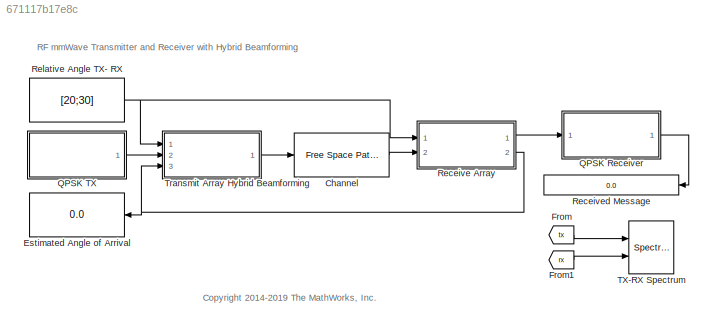
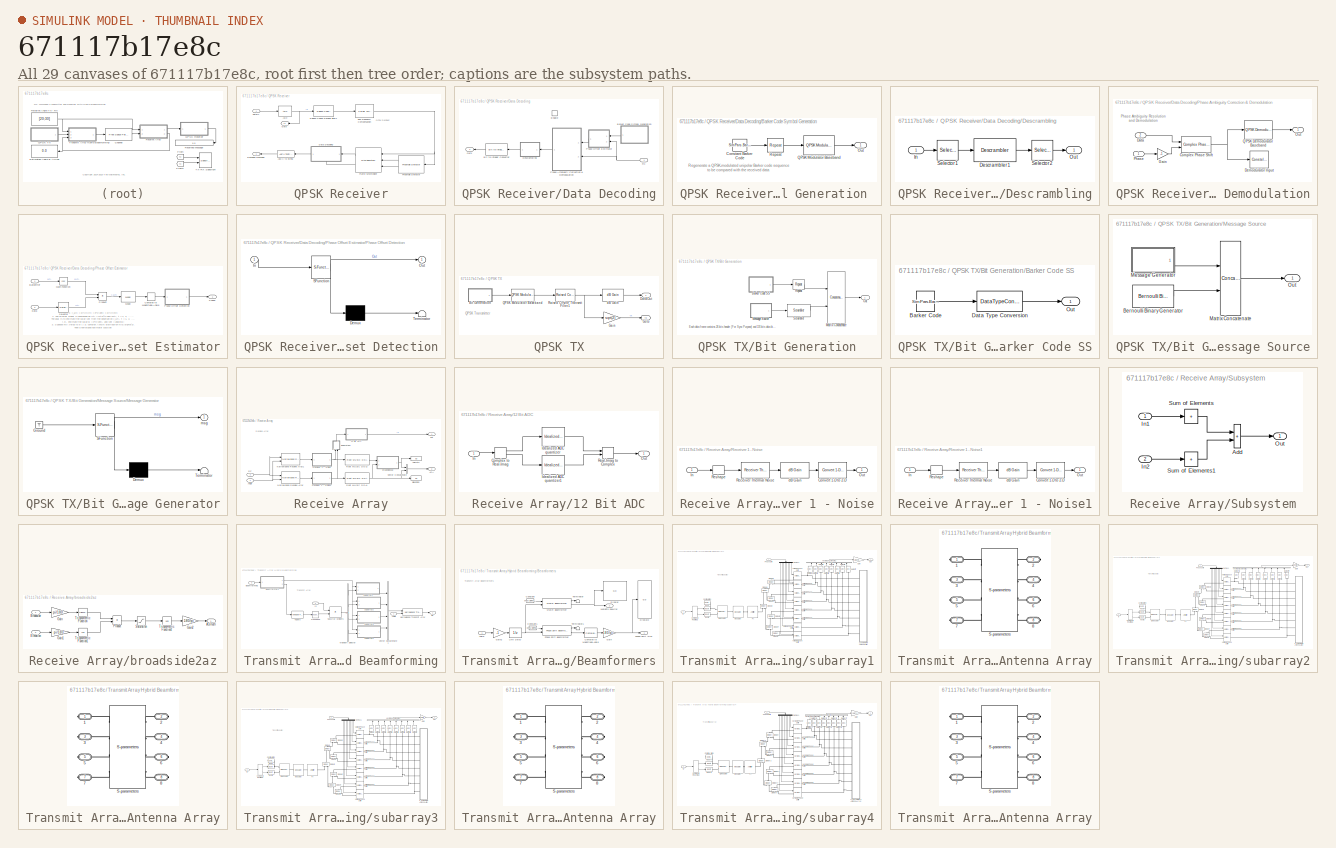
[diagram: thumbnail index - all 29 canvases of the model, root first then tree order]
MODEL slx_671117b17e8c
KIND model
CONFIG AbsTol = auto
CONFIG EnableMultiTasking = on
CONFIG FixedStep = auto
CONFIG MaxStep = auto
CONFIG MinStep = auto
CONFIG PreLoadFcn = SimPars = simrfV2_qpsk_init();\nload simrfV2_qpsk_patch_antenna.mat;
CONFIG RelTol = 1e-3
CONFIG SampleTimeConstraint = Unconstrained
CONFIG SolverName = ode23
CONFIG StartTime = 0.0
CONFIG StopTime = 2e-3
BLOCK [Reference] Channel  REF=commrflib2/Free Space
Path Loss
  Ports = [1, 1]
  SourceBlock = commrflib2/Free Space\nPath Loss
  SourceProductName = Communications Toolbox
  SourceType = Free Space Path Loss
BLOCK [Display] Estimated Angle of Arrival
  Decimation = 1
  Ports = [1]
BLOCK [From] From
  GotoTag = tx
  TagVisibility = global
BLOCK [From] From1
  GotoTag = rx
  TagVisibility = global
BLOCK [SubSystem] QPSK Receiver
  NameLocation = top
  Ports = [1, 1]
  RequestExecContextInheritance = off
BLOCK [Reference] QPSK Receiver/AGC  REF=commrfcorlib/AGC
  Ports = [1, 1]
  SourceBlock = commrfcorlib/AGC
  SourceProductName = Communications Toolbox
  SourceType = AGC
BLOCK [ASCIIToString] QPSK Receiver/ASCII to String
BLOCK [SubSystem] QPSK Receiver/Data Decoding
  NameLocation = top
  Ports = [1, 1, 1]
  RequestExecContextInheritance = off
BLOCK [SubSystem] QPSK Receiver/Data Decoding/Barker Code Symbol Generation 
  Ports = [0, 1]
  RequestExecContextInheritance = off
BLOCK [Constant] QPSK Receiver/Data Decoding/Barker Code Symbol Generation /Constant Barker Code
  OutDataTypeStr = double
  Value = SimPars.BarkerCode > 0
  VectorParams1D = off
BLOCK [Outport] QPSK Receiver/Data Decoding/Barker Code Symbol Generation /Out
  VectorParamsAs1DForOutWhenUnconnected = off
BLOCK [Reference] QPSK Receiver/Data Decoding/Barker Code Symbol Generation /QPSK Modulator Baseband  REF=commdigbbndpm3/QPSK
Modulator
Baseband
  Ports = [1, 1]
  SourceBlock = commdigbbndpm3/QPSK\nModulator\nBaseband
  SourceProductName = Communications Toolbox
  SourceType = QPSK Modulator Baseband
BLOCK [Reference] QPSK Receiver/Data Decoding/Barker Code Symbol Generation /Repeat  REF=dspsigops/Repeat
  Ports = [1, 1]
  SourceBlock = dspsigops/Repeat
  SourceProductName = DSP System Toolbox
  SourceType = Repeat
  UserDataPersistent = on
BLOCK [Reference] QPSK Receiver/Data Decoding/Bit to Integer Converter  REF=commutil2/Bit to Integer
Converter
  Ports = [1, 1]
  SourceBlock = commutil2/Bit to Integer\nConverter
  SourceProductName = Communications Toolbox
  SourceType = Bit to Integer Converter
BLOCK [SubSystem] QPSK Receiver/Data Decoding/Descrambling
  Ports = [1, 1]
  RequestExecContextInheritance = off
BLOCK [Reference] QPSK Receiver/Data Decoding/Descrambling/Descrambler1  REF=commsequence2/Descrambler
  Ports = [1, 1]
  SourceBlock = commsequence2/Descrambler
  SourceProductName = Communications Toolbox
  SourceType = Descrambler
BLOCK [Inport] QPSK Receiver/Data Decoding/Descrambling/In
BLOCK [Outport] QPSK Receiver/Data Decoding/Descrambling/Out
  VectorParamsAs1DForOutWhenUnconnected = off
BLOCK [Selector] QPSK Receiver/Data Decoding/Descrambling/Selector1
  IndexOptions = Index vector (dialog)
  Indices = [2*SimPars.BarkerLength+1:SimPars.NumBitsPerFrame]
  OutputSizes = 1
  Ports = [1, 1]
BLOCK [Selector] QPSK Receiver/Data Decoding/Descrambling/Selector2
  IndexOptions = Index vector (dialog)
  Indices = [1:SimPars.NumMsgBits]
  OutputSizes = 1
  Ports = [1, 1]
BLOCK [EnablePort] QPSK Receiver/Data Decoding/Enable
  Ports = []
BLOCK [Outport] QPSK Receiver/Data Decoding/Out1
  VectorParamsAs1DForOutWhenUnconnected = off
BLOCK [SubSystem] QPSK Receiver/Data Decoding/Phase Ambiguity Correction & Demodulation
  Ports = [2, 1]
  RequestExecContextInheritance = off
BLOCK [Reference] QPSK Receiver/Data Decoding/Phase Ambiguity Correction & Demodulation/Complex Phase Shift  REF=commutil2/Complex Phase
Shift
  Ports = [2, 1]
  SourceBlock = commutil2/Complex Phase\nShift
  SourceProductName = Communications Toolbox
  SourceType = Complex Phase Shift
BLOCK [Inport] QPSK Receiver/Data Decoding/Phase Ambiguity Correction & Demodulation/Data
  Port = 2
BLOCK [ConstellationDiagram] QPSK Receiver/Data Decoding/Phase Ambiguity Correction & Demodulation/Demodulator Input
  Ports = [1]
  ScopeSpecificationString = comm.scopes.ConstellationDiagramBlockCfg('CurrentConfiguration', extmgr.ConfigurationSet(extmgr.Configuration('Core','General UI',true),extmgr.Configuration('Core','Source UI',true),extmgr.Configuration('Sources','WiredSimulink',true),extmgr.Configuration('Sources','Simulink',false),extmgr.Configuration('Sources','SPTool',false),extmgr.Configuration('Sources','Streaming',false),extmgr.Configuratio...<+2215ch>
BLOCK [Gain] QPSK Receiver/Data Decoding/Phase Ambiguity Correction & Demodulation/Gain
  Gain = -1
  OutDataTypeStr = Inherit: Same as input
BLOCK [Outport] QPSK Receiver/Data Decoding/Phase Ambiguity Correction & Demodulation/Out
  VectorParamsAs1DForOutWhenUnconnected = off
BLOCK [Inport] QPSK Receiver/Data Decoding/Phase Ambiguity Correction & Demodulation/Phase
BLOCK [Reference] QPSK Receiver/Data Decoding/Phase Ambiguity Correction & Demodulation/QPSK Demodulator Baseband  REF=commdigbbndpm3/QPSK
Demodulator
Baseband
  Ports = [1, 1]
  SourceBlock = commdigbbndpm3/QPSK\nDemodulator\nBaseband
  SourceProductName = Communications Toolbox
  SourceType = QPSK Demodulator Baseband
BLOCK [SubSystem] QPSK Receiver/Data Decoding/Phase Offset Estimator
  Ports = [2, 1]
  RequestExecContextInheritance = off
BLOCK [Inport] QPSK Receiver/Data Decoding/Phase Offset Estimator/BarkerRef
BLOCK [ComplexToMagnitudeAngle] QPSK Receiver/Data Decoding/Phase Offset Estimator/Complex to Magnitude-Angle
  Output = Angle
  Ports = [1, 1]
BLOCK [Inport] QPSK Receiver/Data Decoding/Phase Offset Estimator/Data
  Port = 2
BLOCK [Math] QPSK Receiver/Data Decoding/Phase Offset Estimator/Math Function
  Operator = conj
  Ports = [1, 1]
  SignedPower = on
BLOCK [Reference] QPSK Receiver/Data Decoding/Phase Offset Estimator/Mean  REF=dspstat3/Mean
  Ports = [1, 1]
  SourceBlock = dspstat3/Mean
  SourceProductName = DSP System Toolbox
  SourceType = Mean
  UserDataPersistent = on
BLOCK [Outport] QPSK Receiver/Data Decoding/Phase Offset Estimator/Phase
  VectorParamsAs1DForOutWhenUnconnected = off
BLOCK [SubSystem] QPSK Receiver/Data Decoding/Phase Offset Estimator/Phase Offset Detection
  ErrorFcn = Stateflow.Translate.translate
  PermitHierarchicalResolution = ExplicitOnly
  Ports = [1, 1]
  RequestExecContextInheritance = off
  SFBlockType = MATLAB Function
  TreatAsAtomicUnit = on
BLOCK [Demux] QPSK Receiver/Data Decoding/Phase Offset Estimator/Phase Offset Detection/ Demux 
  Outputs = 1
  Ports = [1, 1]
BLOCK [S-Function] QPSK Receiver/Data Decoding/Phase Offset Estimator/Phase Offset Detection/ SFunction 
  EnableBusSupport = off
  FunctionName = sf_sfun
  PortCounts = [1 2]
  Ports = [1, 2]
  SFcnIsStateOwnerBlock = off
  SFunctionDeploymentMode = off
  Tag = Stateflow S-Function 1
BLOCK [Terminator] QPSK Receiver/Data Decoding/Phase Offset Estimator/Phase Offset Detection/ Terminator 
BLOCK [Inport] QPSK Receiver/Data Decoding/Phase Offset Estimator/Phase Offset Detection/In
BLOCK [Outport] QPSK Receiver/Data Decoding/Phase Offset Estimator/Phase Offset Detection/Out
  VectorParamsAs1DForOutWhenUnconnected = off
BLOCK [Product] QPSK Receiver/Data Decoding/Phase Offset Estimator/Product
  Ports = [2, 1]
  RndMeth = Zero
BLOCK [Selector] QPSK Receiver/Data Decoding/Phase Offset Estimator/Selector
  IndexOptions = Index vector (dialog)
  Indices = [1:SimPars.BarkerLength]
  OutputSizes = 1
  Ports = [1, 1]
BLOCK [Inport] QPSK Receiver/Data Decoding/Rx
BLOCK [Outport] QPSK Receiver/Decoded Message
  VectorParamsAs1DForOutWhenUnconnected = off
BLOCK [Reference] QPSK Receiver/Fine Frequency Compensation  REF=commsync2/Carrier Synchronizer
  Ports = [1, 1]
  SourceBlock = commsync2/Carrier Synchronizer
  SourceProductName = Communications Toolbox
  SourceType = Carrier Synchronizer
BLOCK [MATLABSystem] QPSK Receiver/Frame Synchronizer
  Input = Symbol
  MaskDisplay = disp(['Frame' char(10) 'Synchronizer']);\nport_label('input',1,'u');\nport_label('input',2,'idx');\nport_label('input',3,'dtMt');\nport_label('output',1,'Frame');\nport_label('output',2,'Valid');
  MaskType = comm.internal.examples.FrameSynchronizer
  OutputFrameLength = SimPars.NumSymsPerFrame
  Ports = [3, 2]
  PreambleLength = SimPars.BarkerLength
  SimulateUsing = Code generation
  System = comm.internal.examples.FrameSynchronizer
BLOCK [Goto] QPSK Receiver/Goto
  GotoTag = rx
  TagVisibility = global
BLOCK [Reference] QPSK Receiver/Preamble Detector  REF=commsync2/Preamble Detector
  Ports = [1, 2]
  SourceBlock = commsync2/Preamble Detector
  SourceProductName = Communications Toolbox
  SourceType = Preamble Detector
BLOCK [Reference] QPSK Receiver/Raised Cosine Receive Filter1  REF=commfilt2/Raised Cosine
Receive Filter
  Ports = [1, 1]
  SourceBlock = commfilt2/Raised Cosine\nReceive Filter
  SourceProductName = Communications Toolbox
  SourceType = Raised Cosine Receive Filter
  UserDataPersistent = on
BLOCK [Inport] QPSK Receiver/dataIn
BLOCK [SubSystem] QPSK TX
  Ports = [0, 1]
  RequestExecContextInheritance = off
BLOCK [SubSystem] QPSK TX/Bit Generation
  Ports = [0, 1]
  RequestExecContextInheritance = off
BLOCK [SubSystem] QPSK TX/Bit Generation/Barker Code SS
  Ports = [0, 1]
  RequestExecContextInheritance = off
BLOCK [Constant] QPSK TX/Bit Generation/Barker Code SS/Barker Code
  Value = SimPars.BarkerCode > 0  % Bipolar to Unipolar Conversion
  VectorParams1D = off
BLOCK [DataTypeConversion] QPSK TX/Bit Generation/Barker Code SS/Data Type Conversion
  OutDataTypeStr = double
  RndMeth = Floor
  SaturateOnIntegerOverflow = off
BLOCK [Outport] QPSK TX/Bit Generation/Barker Code SS/Out
  VectorParamsAs1DForOutWhenUnconnected = off
BLOCK [Concatenate] QPSK TX/Bit Generation/Matrix Concatenate
  Mode = Multidimensional array
  Ports = [2, 1]
BLOCK [SubSystem] QPSK TX/Bit Generation/Message Source
  Ports = [0, 1]
  RequestExecContextInheritance = off
BLOCK [Reference] QPSK TX/Bit Generation/Message Source/Bernoulli Binary Generator  REF=commrandsrc3/Bernoulli Binary
Generator
  Ports = [0, 1]
  SourceBlock = commrandsrc3/Bernoulli Binary\nGenerator
  SourceProductName = Communications Toolbox
  SourceType = Bernoulli Binary Generator
BLOCK [Concatenate] QPSK TX/Bit Generation/Message Source/Matrix Concatenate
  Mode = Multidimensional array
  Ports = [2, 1]
BLOCK [SubSystem] QPSK TX/Bit Generation/Message Source/Message Generator
  ErrorFcn = Stateflow.Translate.translate
  PermitHierarchicalResolution = ExplicitOnly
  Ports = [0, 1]
  RequestExecContextInheritance = off
  SFBlockType = MATLAB Function
  TreatAsAtomicUnit = on
BLOCK [Demux] QPSK TX/Bit Generation/Message Source/Message Generator/ Demux 
  Outputs = 1
  Ports = [1, 1]
BLOCK [Ground] QPSK TX/Bit Generation/Message Source/Message Generator/ Ground 
BLOCK [S-Function] QPSK TX/Bit Generation/Message Source/Message Generator/ SFunction 
  EnableBusSupport = off
  FunctionName = sf_sfun
  PortCounts = [1 2]
  Ports = [1, 2]
  SFcnIsStateOwnerBlock = off
  SFunctionDeploymentMode = off
  Tag = Stateflow S-Function 3
BLOCK [Terminator] QPSK TX/Bit Generation/Message Source/Message Generator/ Terminator 
BLOCK [Outport] QPSK TX/Bit Generation/Message Source/Message Generator/msg
BLOCK [Outport] QPSK TX/Bit Generation/Message Source/Out
  VectorParamsAs1DForOutWhenUnconnected = off
BLOCK [Outport] QPSK TX/Bit Generation/Out
  VectorParamsAs1DForOutWhenUnconnected = off
BLOCK [Reference] QPSK TX/Bit Generation/Repeat  REF=dspsigops/Repeat
  Ports = [1, 1]
  SourceBlock = dspsigops/Repeat
  SourceProductName = DSP System Toolbox
  SourceType = Repeat
  UserDataPersistent = on
BLOCK [Reference] QPSK TX/Bit Generation/Scrambler  REF=commsequence2/Scrambler
  Ports = [1, 1]
  SourceBlock = commsequence2/Scrambler
  SourceProductName = Communications Toolbox
  SourceType = Scrambler
BLOCK [Outport] QPSK TX/DataOut
  VectorParamsAs1DForOutWhenUnconnected = off
BLOCK [Gain] QPSK TX/Gain
  Gain = sqrt(2)
BLOCK [Goto] QPSK TX/Goto
  GotoTag = tx
  TagVisibility = global
BLOCK [Reference] QPSK TX/QPSK Modulator Baseband  REF=commdigbbndpm3/QPSK
Modulator
Baseband
  Ports = [1, 1]
  SourceBlock = commdigbbndpm3/QPSK\nModulator\nBaseband
  SourceProductName = Communications Toolbox
  SourceType = QPSK Modulator Baseband
BLOCK [Reference] QPSK TX/Raised Cosine Transmit Filter1  REF=commfilt2/Raised Cosine
Transmit Filter
  Ports = [1, 1]
  SourceBlock = commfilt2/Raised Cosine\nTransmit Filter
  SourceProductName = Communications Toolbox
  SourceType = Raised Cosine Transmit Filter
  UserDataPersistent = on
BLOCK [Reference] QPSK TX/dB Gain  REF=dspmathops/dB Gain
  Ports = [1, 1]
  SourceBlock = dspmathops/dB Gain
  SourceProductName = DSP System Toolbox
  SourceType = dB Gain
BLOCK [SubSystem] Receive Array
  Ports = [2, 2]
  RequestExecContextInheritance = off
BLOCK [SubSystem] Receive Array/12 Bit ADC
  Ports = [1, 1]
  RequestExecContextInheritance = off
BLOCK [ComplexToRealImag] Receive Array/12 Bit ADC/Complex to Real-Imag
  Ports = [1, 2]
BLOCK [Reference] Receive Array/12 Bit ADC/Idealized ADC quantizer  REF=simulink_extras/Additional
Discrete/Idealized ADC quantizer
  AttributesFormatString = (settings: %<NumberOfConverterBits>-bit converter\nVmin: %<Vmin>, Vmax: %<Vmax>)
  NameLocation = top
  Ports = [1, 1]
  SourceBlock = simulink_extras/Additional\nDiscrete/Idealized ADC quantizer
  SourceProductName = Simulink Extras
  SourceType = IdealADC
BLOCK [Reference] Receive Array/12 Bit ADC/Idealized ADC quantizer1  REF=simulink_extras/Additional
Discrete/Idealized ADC quantizer
  AttributesFormatString = (settings: %<NumberOfConverterBits>-bit converter\nVmin: %<Vmin>, Vmax: %<Vmax>)
  Ports = [1, 1]
  SourceBlock = simulink_extras/Additional\nDiscrete/Idealized ADC quantizer
  SourceProductName = Simulink Extras
  SourceType = IdealADC
BLOCK [Inport] Receive Array/12 Bit ADC/In  
BLOCK [Outport] Receive Array/12 Bit ADC/Out
  VectorParamsAs1DForOutWhenUnconnected = off
BLOCK [RealImagToComplex] Receive Array/12 Bit ADC/Real-Imag to Complex
  Ports = [2, 1]
BLOCK [Outport] Receive Array/AOA
  Port = 2
  VectorParamsAs1DForOutWhenUnconnected = off
BLOCK [Inport] Receive Array/Angle
BLOCK [Display] Receive Array/Azimuth
  Decimation = 1
  NameLocation = top
  Ports = [1]
BLOCK [Display] Receive Array/Elevation
  Decimation = 1
  Ports = [1]
BLOCK [Reference] Receive Array/Narrowband Receive Array  REF=phasedtxrxlib/Narrowband Receive Array
  Ports = [2, 1]
  SourceBlock = phasedtxrxlib/Narrowband Receive Array
  SourceProductName = Phased Array System Toolbox
  SourceType = phased.Collector
BLOCK [Reference] Receive Array/Narrowband Receive Array1  REF=phasedtxrxlib/Narrowband Receive Array
  Ports = [2, 1]
  SourceBlock = phasedtxrxlib/Narrowband Receive Array
  SourceProductName = Phased Array System Toolbox
  SourceType = phased.Collector
BLOCK [Inport] Receive Array/RF
  NameLocation = top
  Port = 2
BLOCK [SubSystem] Receive Array/Receiver 1 - Noise
  NameLocation = top
  Ports = [1, 1]
  RequestExecContextInheritance = off
BLOCK [Reference] Receive Array/Receiver 1 - Noise/Convert 1-D to 2-D  REF=dspsigattribs/Convert 1-D to 2-D
  Ports = [1, 1]
  SourceBlock = dspsigattribs/Convert 1-D to 2-D
  SourceProductName = DSP System Toolbox
  SourceType = Convert 1-D to 2-D
BLOCK [Inport] Receive Array/Receiver 1 - Noise/In
BLOCK [Outport] Receive Array/Receiver 1 - Noise/Out
  VectorParamsAs1DForOutWhenUnconnected = off
BLOCK [Reference] Receive Array/Receiver 1 - Noise/Receiver Thermal Noise  REF=commrflib2/Receiver
Thermal Noise
  Ports = [1, 1]
  SourceBlock = commrflib2/Receiver\nThermal Noise
  SourceProductName = Communications Toolbox
  SourceType = Receiver Thermal Noise
BLOCK [Reshape] Receive Array/Receiver 1 - Noise/Reshape
  OutputDimensionality = Column vector (2-D)
  Ports = [1, 1]
BLOCK [Reference] Receive Array/Receiver 1 - Noise/dB Gain  REF=dspmathops/dB Gain
  Ports = [1, 1]
  SourceBlock = dspmathops/dB Gain
  SourceProductName = DSP System Toolbox
  SourceType = dB Gain
BLOCK [SubSystem] Receive Array/Receiver 1 - Noise1
  NameLocation = top
  Ports = [1, 1]
  RequestExecContextInheritance = off
BLOCK [Reference] Receive Array/Receiver 1 - Noise1/Convert 1-D to 2-D  REF=dspsigattribs/Convert 1-D to 2-D
  Ports = [1, 1]
  SourceBlock = dspsigattribs/Convert 1-D to 2-D
  SourceProductName = DSP System Toolbox
  SourceType = Convert 1-D to 2-D
BLOCK [Inport] Receive Array/Receiver 1 - Noise1/In
BLOCK [Outport] Receive Array/Receiver 1 - Noise1/Out
  VectorParamsAs1DForOutWhenUnconnected = off
BLOCK [Reference] Receive Array/Receiver 1 - Noise1/Receiver Thermal Noise  REF=commrflib2/Receiver
Thermal Noise
  Ports = [1, 1]
  SourceBlock = commrflib2/Receiver\nThermal Noise
  SourceProductName = Communications Toolbox
  SourceType = Receiver Thermal Noise
BLOCK [Reshape] Receive Array/Receiver 1 - Noise1/Reshape
  OutputDimensionality = Column vector (2-D)
  Ports = [1, 1]
BLOCK [Reference] Receive Array/Receiver 1 - Noise1/dB Gain  REF=dspmathops/dB Gain
  Ports = [1, 1]
  SourceBlock = dspmathops/dB Gain
  SourceProductName = DSP System Toolbox
  SourceType = dB Gain
BLOCK [Reference] Receive Array/Root MUSIC DOA1  REF=phaseddoalib/Root MUSIC DOA
  Ports = [1, 1]
  SourceBlock = phaseddoalib/Root MUSIC DOA
  SourceProductName = Phased Array System Toolbox
  SourceType = phased.RootMUSICEstimator
BLOCK [Reference] Receive Array/Root MUSIC DOA2  REF=phaseddoalib/Root MUSIC DOA
  Ports = [1, 1]
  SourceBlock = phaseddoalib/Root MUSIC DOA
  SourceProductName = Phased Array System Toolbox
  SourceType = phased.RootMUSICEstimator
BLOCK [SubSystem] Receive Array/Subsystem
  NameLocation = right
  Ports = [2, 1]
  RequestExecContextInheritance = off
BLOCK [Sum] Receive Array/Subsystem/Add
  IconShape = rectangular
  Ports = [2, 1]
BLOCK [Inport] Receive Array/Subsystem/In1
BLOCK [Inport] Receive Array/Subsystem/In2
  Port = 2
BLOCK [Outport] Receive Array/Subsystem/Out
  VectorParamsAs1DForOutWhenUnconnected = off
BLOCK [Sum] Receive Array/Subsystem/Sum of Elements
  CollapseDim = 2
  CollapseMode = Specified dimension
  IconShape = rectangular
  Inputs = +
  Ports = [1, 1]
BLOCK [Sum] Receive Array/Subsystem/Sum of Elements1
  CollapseDim = 2
  CollapseMode = Specified dimension
  IconShape = rectangular
  Inputs = +
  Ports = [1, 1]
BLOCK [Concatenate] Receive Array/Vector Concatenate
  Mode = Multidimensional array
  Ports = [2, 1]
BLOCK [SubSystem] Receive Array/broadside2az
  Ports = [2, 1]
  RequestExecContextInheritance = off
  VariantControl = BroadsideToAzimuth
BLOCK [Outport] Receive Array/broadside2az/Azimuth
  VectorParamsAs1DForOutWhenUnconnected = off
BLOCK [Inport] Receive Array/broadside2az/Broadside
BLOCK [Inport] Receive Array/broadside2az/Elevation
  Port = 2
BLOCK [Gain] Receive Array/broadside2az/Gain
  Gain = pi/180
BLOCK [Gain] Receive Array/broadside2az/Gain1
  Gain = pi/180
BLOCK [Gain] Receive Array/broadside2az/Gain2
  Gain = 180/pi
BLOCK [Product] Receive Array/broadside2az/Product
  Inputs = */
  Ports = [2, 1]
BLOCK [Saturate] Receive Array/broadside2az/Saturation
  LowerLimit = -1
  UpperLimit = 1
BLOCK [Trigonometry] Receive Array/broadside2az/Trigonometric Function
  Ports = [1, 1]
BLOCK [Trigonometry] Receive Array/broadside2az/Trigonometric Function1
  Operator = cos
  Ports = [1, 1]
BLOCK [Trigonometry] Receive Array/broadside2az/Trigonometric Function2
  Operator = asin
  Ports = [1, 1]
BLOCK [Outport] Receive Array/out
  VectorParamsAs1DForOutWhenUnconnected = off
BLOCK [Display] Received Message
  Decimation = 1
  Ports = [1]
BLOCK [Constant] Relative Angle TX- RX
  NameLocation = top
  Value = [20;30]
  VectorParams1D = off
BLOCK [SpectrumAnalyzer] TX-RX Spectrum
  NumInputPorts = 2
  Ports = [2]
  ScopeSpecificationString = spbscopes.SpectrumAnalyzerBlockCfg('CurrentConfiguration', extmgr.ConfigurationSet(extmgr.Configuration('Core','General UI',true),extmgr.Configuration('Core','Source UI',true),extmgr.Configuration('Sources','WiredSimulink',true),extmgr.Configuration('Sources','SPTool',false),extmgr.Configuration('Sources','Workspace',false),extmgr.Configuration('Sources','File',false),extmgr.Configuration('Sources...<+2828ch>
BLOCK [SubSystem] Transmit Array Hybrid Beamforming
  Ports = [3, 1]
  RequestExecContextInheritance = off
BLOCK [Inport] Transmit Array Hybrid Beamforming/Angle
BLOCK [SubSystem] Transmit Array Hybrid Beamforming/Beamformers
  Ports = [1, 2]
  RequestExecContextInheritance = off
BLOCK [Inport] Transmit Array Hybrid Beamforming/Beamformers/Angle
BLOCK [ComplexToMagnitudeAngle] Transmit Array Hybrid Beamforming/Beamformers/Complex to Magnitude-Angle
  Output = Angle
  Ports = [1, 1]
BLOCK [Constant] Transmit Array Hybrid Beamforming/Beamformers/Constant
  Value = ones(SimPars.NumBitsPerFrame,4)
  VectorParams1D = off
BLOCK [Constant] Transmit Array Hybrid Beamforming/Beamformers/Constant1
  Value = ones(SimPars.NumBitsPerFrame,8)
  VectorParams1D = off
BLOCK [Display] Transmit Array Hybrid Beamforming/Beamformers/Display
  Decimation = 1
  Ports = [1]
BLOCK [Display] Transmit Array Hybrid Beamforming/Beamformers/Display2
  Decimation = 1
  Ports = [1]
BLOCK [Gain] Transmit Array Hybrid Beamforming/Beamformers/Gain
  Gain = 180/pi
BLOCK [Gain] Transmit Array Hybrid Beamforming/Beamformers/Gain2
  Gain = -1
BLOCK [Reference] Transmit Array Hybrid Beamforming/Beamformers/MVDR Beamformer  REF=phasedbflib/MVDR Beamformer
  Ports = [2, 2]
  SourceBlock = phasedbflib/MVDR Beamformer
  SourceProductName = Phased Array System Toolbox
  SourceType = phased.MVDRBeamformer
BLOCK [Outport] Transmit Array Hybrid Beamforming/Beamformers/Phase Shift Array
  VectorParamsAs1DForOutWhenUnconnected = off
BLOCK [Reference] Transmit Array Hybrid Beamforming/Beamformers/Phase Shift Beamformer  REF=phasedbflib/Phase Shift Beamformer
  Ports = [2, 2]
  SourceBlock = phasedbflib/Phase Shift Beamformer
  SourceProductName = Phased Array System Toolbox
  SourceType = phased.PhaseShiftBeamformer
BLOCK [Terminator] Transmit Array Hybrid Beamforming/Beamformers/Terminator
BLOCK [Terminator] Transmit Array Hybrid Beamforming/Beamformers/Terminator1
BLOCK [UnitDelay] Transmit Array Hybrid Beamforming/Beamformers/Unit Delay
  HasFrameUpgradeWarning = on
  SampleTime = -1
BLOCK [Outport] Transmit Array Hybrid Beamforming/Beamformers/Weights SubArray
  Port = 2
  VectorParamsAs1DForOutWhenUnconnected = off
BLOCK [Inport] Transmit Array Hybrid Beamforming/Beamforming
  Port = 3
BLOCK [Inport] Transmit Array Hybrid Beamforming/In
  Port = 2
BLOCK [Reference] Transmit Array Hybrid Beamforming/Multiport Selector  REF=dspindex/Multiport
Selector
  Ports = [1, 4]
  SourceBlock = dspindex/Multiport\nSelector
  SourceProductName = DSP System Toolbox
  SourceType = Multiport Selector
BLOCK [Reference] Transmit Array Hybrid Beamforming/Narrowband Transmit Array  REF=phasedtxrxlib/Narrowband Transmit Array
  Ports = [2, 1]
  SourceBlock = phasedtxrxlib/Narrowband Transmit Array
  SourceProductName = Phased Array System Toolbox
  SourceType = phased.Radiator
BLOCK [Outport] Transmit Array Hybrid Beamforming/RF
  VectorParamsAs1DForOutWhenUnconnected = off
BLOCK [Product] Transmit Array Hybrid Beamforming/SubArray Weights
  Multiplication = Matrix(*)
  Ports = [2, 1]
BLOCK [Reference] Transmit Array Hybrid Beamforming/Tapers  REF=dspsigops/Window
Function
  Ports = [1, 1]
  SourceBlock = dspsigops/Window\nFunction
  SourceProductName = DSP System Toolbox
  SourceType = Window Function
BLOCK [Math] Transmit Array Hybrid Beamforming/Transpose
  Operator = transpose
  Ports = [1, 1]
BLOCK [Concatenate] Transmit Array Hybrid Beamforming/Vector Concatenate1
  ConcatenateDimension = 2
  Mode = Multidimensional array
  NumInputs = 4
  Ports = [4, 1]
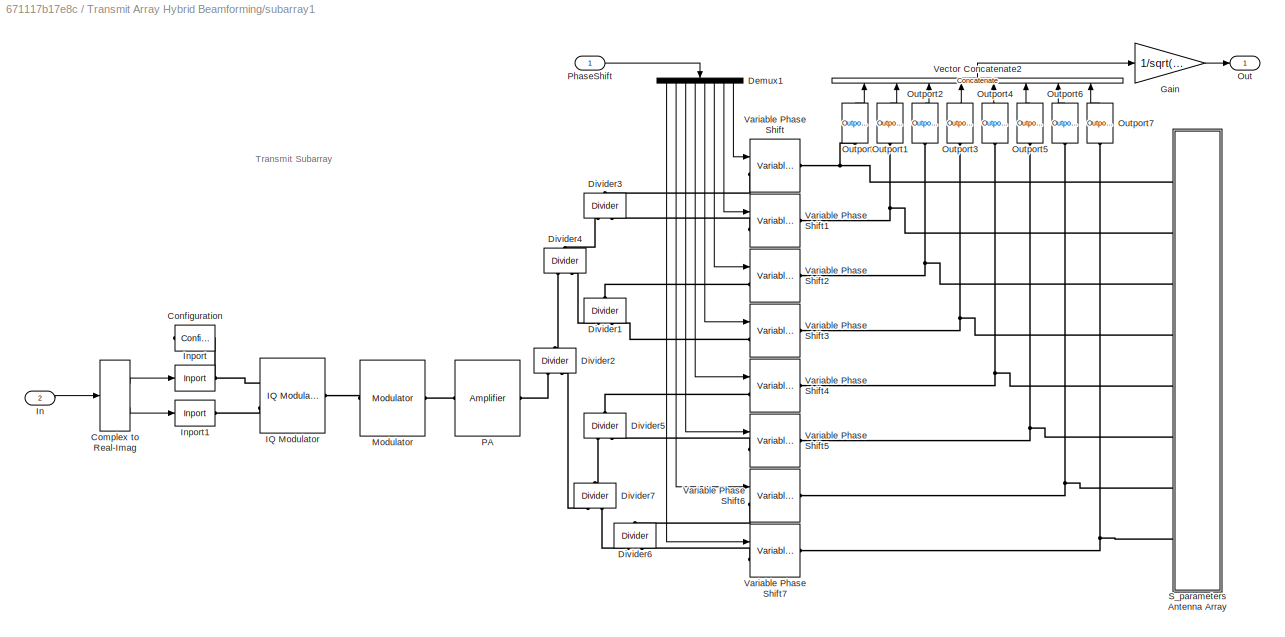
BLOCK [SubSystem] Transmit Array Hybrid Beamforming/subarray1
  Ports = [2, 1]
  RequestExecContextInheritance = off
BLOCK [ComplexToRealImag] Transmit Array Hybrid Beamforming/subarray1/Complex to Real-Imag
  Ports = [1, 2]
BLOCK [Reference] Transmit Array Hybrid Beamforming/subarray1/Configuration  REF=simrfV2util1/Configuration
  NameLocation = top
  Ports = [0, 0, 0, 0, 0, 1]
  SourceBlock = simrfV2util1/Configuration
  SourceProductName = RF Blockset
  SourceType = Configuration
BLOCK [Demux] Transmit Array Hybrid Beamforming/subarray1/Demux1
  NameLocation = left
  Outputs = 8
  Ports = [1, 8]
BLOCK [Reference] Transmit Array Hybrid Beamforming/subarray1/Divider1  REF=simrfV2junction1/Divider
  NameLocation = right
  Ports = [0, 0, 0, 0, 0, 2, 1]
  SourceBlock = simrfV2junction1/Divider
  SourceProductName = RF Blockset
  SourceType = Ideal Dividers
  UserDataPersistent = on
BLOCK [Reference] Transmit Array Hybrid Beamforming/subarray1/Divider2  REF=simrfV2junction1/Divider
  NameLocation = right
  Ports = [0, 0, 0, 0, 0, 2, 1]
  SourceBlock = simrfV2junction1/Divider
  SourceProductName = RF Blockset
  SourceType = Ideal Dividers
  UserDataPersistent = on
BLOCK [Reference] Transmit Array Hybrid Beamforming/subarray1/Divider3  REF=simrfV2junction1/Divider
  NameLocation = right
  Ports = [0, 0, 0, 0, 0, 2, 1]
  SourceBlock = simrfV2junction1/Divider
  SourceProductName = RF Blockset
  SourceType = Ideal Dividers
  UserDataPersistent = on
BLOCK [Reference] Transmit Array Hybrid Beamforming/subarray1/Divider4  REF=simrfV2junction1/Divider
  NameLocation = right
  Ports = [0, 0, 0, 0, 0, 2, 1]
  SourceBlock = simrfV2junction1/Divider
  SourceProductName = RF Blockset
  SourceType = Ideal Dividers
  UserDataPersistent = on
BLOCK [Reference] Transmit Array Hybrid Beamforming/subarray1/Divider5  REF=simrfV2junction1/Divider
  NameLocation = right
  Ports = [0, 0, 0, 0, 0, 2, 1]
  SourceBlock = simrfV2junction1/Divider
  SourceProductName = RF Blockset
  SourceType = Ideal Dividers
  UserDataPersistent = on
BLOCK [Reference] Transmit Array Hybrid Beamforming/subarray1/Divider6  REF=simrfV2junction1/Divider
  NameLocation = right
  Ports = [0, 0, 0, 0, 0, 2, 1]
  SourceBlock = simrfV2junction1/Divider
  SourceProductName = RF Blockset
  SourceType = Ideal Dividers
  UserDataPersistent = on
BLOCK [Reference] Transmit Array Hybrid Beamforming/subarray1/Divider7  REF=simrfV2junction1/Divider
  NameLocation = right
  Ports = [0, 0, 0, 0, 0, 2, 1]
  SourceBlock = simrfV2junction1/Divider
  SourceProductName = RF Blockset
  SourceType = Ideal Dividers
  UserDataPersistent = on
BLOCK [Gain] Transmit Array Hybrid Beamforming/subarray1/Gain
  Gain = 1/sqrt(50)
BLOCK [Reference] Transmit Array Hybrid Beamforming/subarray1/IQ Modulator  REF=simrfV2systems/IQ Modulator
  Ports = [0, 0, 0, 0, 0, 2, 1]
  SourceBlock = simrfV2systems/IQ Modulator
  SourceProductName = RF Blockset
  SourceType = IQ Modulator
BLOCK [Inport] Transmit Array Hybrid Beamforming/subarray1/In
  OutDataTypeStr = double
  Port = 2
  SamplingMode = Sample based
  SignalType = complex
BLOCK [Reference] Transmit Array Hybrid Beamforming/subarray1/Inport  REF=simrfV2util1/Inport
  Ports = [1, 0, 0, 0, 0, 0, 1]
  SourceBlock = simrfV2util1/Inport
  SourceProductName = RF Blockset
  SourceType = Inport
BLOCK [Reference] Transmit Array Hybrid Beamforming/subarray1/Inport1  REF=simrfV2util1/Inport
  Ports = [1, 0, 0, 0, 0, 0, 1]
  SourceBlock = simrfV2util1/Inport
  SourceProductName = RF Blockset
  SourceType = Inport
BLOCK [Reference] Transmit Array Hybrid Beamforming/subarray1/Modulator  REF=simrfV2systems/Modulator
  Ports = [0, 0, 0, 0, 0, 1, 1]
  SourceBlock = simrfV2systems/Modulator
  SourceProductName = RF Blockset
  SourceType = Modulator
BLOCK [Outport] Transmit Array Hybrid Beamforming/subarray1/Out
  OutDataTypeStr = double
  SamplingMode = Sample based
  SignalType = complex
  VectorParamsAs1DForOutWhenUnconnected = off
BLOCK [Reference] Transmit Array Hybrid Beamforming/subarray1/Outport  REF=simrfV2util1/Outport
  NameLocation = right
  Ports = [0, 1, 0, 0, 0, 1]
  SourceBlock = simrfV2util1/Outport
  SourceProductName = RF Blockset
  SourceType = Outport
BLOCK [Reference] Transmit Array Hybrid Beamforming/subarray1/Outport1  REF=simrfV2util1/Outport
  NameLocation = right
  Ports = [0, 1, 0, 0, 0, 1]
  SourceBlock = simrfV2util1/Outport
  SourceProductName = RF Blockset
  SourceType = Outport
BLOCK [Reference] Transmit Array Hybrid Beamforming/subarray1/Outport2  REF=simrfV2util1/Outport
  NameLocation = right
  Ports = [0, 1, 0, 0, 0, 1]
  SourceBlock = simrfV2util1/Outport
  SourceProductName = RF Blockset
  SourceType = Outport
BLOCK [Reference] Transmit Array Hybrid Beamforming/subarray1/Outport3  REF=simrfV2util1/Outport
  NameLocation = right
  Ports = [0, 1, 0, 0, 0, 1]
  SourceBlock = simrfV2util1/Outport
  SourceProductName = RF Blockset
  SourceType = Outport
BLOCK [Reference] Transmit Array Hybrid Beamforming/subarray1/Outport4  REF=simrfV2util1/Outport
  NameLocation = right
  Ports = [0, 1, 0, 0, 0, 1]
  SourceBlock = simrfV2util1/Outport
  SourceProductName = RF Blockset
  SourceType = Outport
BLOCK [Reference] Transmit Array Hybrid Beamforming/subarray1/Outport5  REF=simrfV2util1/Outport
  NameLocation = right
  Ports = [0, 1, 0, 0, 0, 1]
  SourceBlock = simrfV2util1/Outport
  SourceProductName = RF Blockset
  SourceType = Outport
BLOCK [Reference] Transmit Array Hybrid Beamforming/subarray1/Outport6  REF=simrfV2util1/Outport
  NameLocation = right
  Ports = [0, 1, 0, 0, 0, 1]
  SourceBlock = simrfV2util1/Outport
  SourceProductName = RF Blockset
  SourceType = Outport
BLOCK [Reference] Transmit Array Hybrid Beamforming/subarray1/Outport7  REF=simrfV2util1/Outport
  NameLocation = right
  Ports = [0, 1, 0, 0, 0, 1]
  SourceBlock = simrfV2util1/Outport
  SourceProductName = RF Blockset
  SourceType = Outport
BLOCK [Reference] Transmit Array Hybrid Beamforming/subarray1/PA  REF=simrfV2elements/Amplifier
  Ports = [0, 0, 0, 0, 0, 1, 1]
  SourceBlock = simrfV2elements/Amplifier
  SourceProductName = RF Blockset
  SourceType = Amplifier
BLOCK [Inport] Transmit Array Hybrid Beamforming/subarray1/PhaseShift
  OutDataTypeStr = double
  SamplingMode = Sample based
  SignalType = real
BLOCK [SubSystem] Transmit Array Hybrid Beamforming/subarray1/S_parameters Antenna Array
  Ports = [0, 0, 0, 0, 0, 0, 8]
  RequestExecContextInheritance = off
BLOCK [PMIOPort] Transmit Array Hybrid Beamforming/subarray1/S_parameters Antenna Array/1
  NameLocation = top
  Side = Right
BLOCK [PMIOPort] Transmit Array Hybrid Beamforming/subarray1/S_parameters Antenna Array/2
  Port = 2
  Side = Right
BLOCK [PMIOPort] Transmit Array Hybrid Beamforming/subarray1/S_parameters Antenna Array/3
  Port = 3
  Side = Right
BLOCK [PMIOPort] Transmit Array Hybrid Beamforming/subarray1/S_parameters Antenna Array/4
  Port = 4
  Side = Right
BLOCK [PMIOPort] Transmit Array Hybrid Beamforming/subarray1/S_parameters Antenna Array/5
  Port = 5
  Side = Right
BLOCK [PMIOPort] Transmit Array Hybrid Beamforming/subarray1/S_parameters Antenna Array/6
  Port = 6
  Side = Right
BLOCK [PMIOPort] Transmit Array Hybrid Beamforming/subarray1/S_parameters Antenna Array/7
  Port = 7
  Side = Right
BLOCK [PMIOPort] Transmit Array Hybrid Beamforming/subarray1/S_parameters Antenna Array/8
  Port = 8
  Side = Right
BLOCK [Reference] Transmit Array Hybrid Beamforming/subarray1/S_parameters Antenna Array/S-parameters  REF=simrfV2elements/S-parameters
  Ports = [0, 0, 0, 0, 0, 4, 4]
  SourceBlock = simrfV2elements/S-parameters
  SourceProductName = RF Blockset
  SourceType = S-parameters
  UserDataPersistent = on
BLOCK [Reference] Transmit Array Hybrid Beamforming/subarray1/Variable Phase Shift  REF=simrfV2elements/Variable
Phase Shift
  Ports = [1, 0, 0, 0, 0, 1, 1]
  SourceBlock = simrfV2elements/Variable\nPhase Shift
  SourceProductName = RF Blockset
  SourceType = Variable Phase
BLOCK [Reference] Transmit Array Hybrid Beamforming/subarray1/Variable Phase Shift1  REF=simrfV2elements/Variable
Phase Shift
  Ports = [1, 0, 0, 0, 0, 1, 1]
  SourceBlock = simrfV2elements/Variable\nPhase Shift
  SourceProductName = RF Blockset
  SourceType = Variable Phase
BLOCK [Reference] Transmit Array Hybrid Beamforming/subarray1/Variable Phase Shift2  REF=simrfV2elements/Variable
Phase Shift
  Ports = [1, 0, 0, 0, 0, 1, 1]
  SourceBlock = simrfV2elements/Variable\nPhase Shift
  SourceProductName = RF Blockset
  SourceType = Variable Phase
BLOCK [Reference] Transmit Array Hybrid Beamforming/subarray1/Variable Phase Shift3  REF=simrfV2elements/Variable
Phase Shift
  Ports = [1, 0, 0, 0, 0, 1, 1]
  SourceBlock = simrfV2elements/Variable\nPhase Shift
  SourceProductName = RF Blockset
  SourceType = Variable Phase
BLOCK [Reference] Transmit Array Hybrid Beamforming/subarray1/Variable Phase Shift4  REF=simrfV2elements/Variable
Phase Shift
  Ports = [1, 0, 0, 0, 0, 1, 1]
  SourceBlock = simrfV2elements/Variable\nPhase Shift
  SourceProductName = RF Blockset
  SourceType = Variable Phase
BLOCK [Reference] Transmit Array Hybrid Beamforming/subarray1/Variable Phase Shift5  REF=simrfV2elements/Variable
Phase Shift
  Ports = [1, 0, 0, 0, 0, 1, 1]
  SourceBlock = simrfV2elements/Variable\nPhase Shift
  SourceProductName = RF Blockset
  SourceType = Variable Phase
BLOCK [Reference] Transmit Array Hybrid Beamforming/subarray1/Variable Phase Shift6  REF=simrfV2elements/Variable
Phase Shift
  Ports = [1, 0, 0, 0, 0, 1, 1]
  SourceBlock = simrfV2elements/Variable\nPhase Shift
  SourceProductName = RF Blockset
  SourceType = Variable Phase
BLOCK [Reference] Transmit Array Hybrid Beamforming/subarray1/Variable Phase Shift7  REF=simrfV2elements/Variable
Phase Shift
  Ports = [1, 0, 0, 0, 0, 1, 1]
  SourceBlock = simrfV2elements/Variable\nPhase Shift
  SourceProductName = RF Blockset
  SourceType = Variable Phase
BLOCK [Concatenate] Transmit Array Hybrid Beamforming/subarray1/Vector Concatenate2
  ConcatenateDimension = 2
  Mode = Multidimensional array
  NameLocation = right
  NumInputs = 8
  Ports = [8, 1]
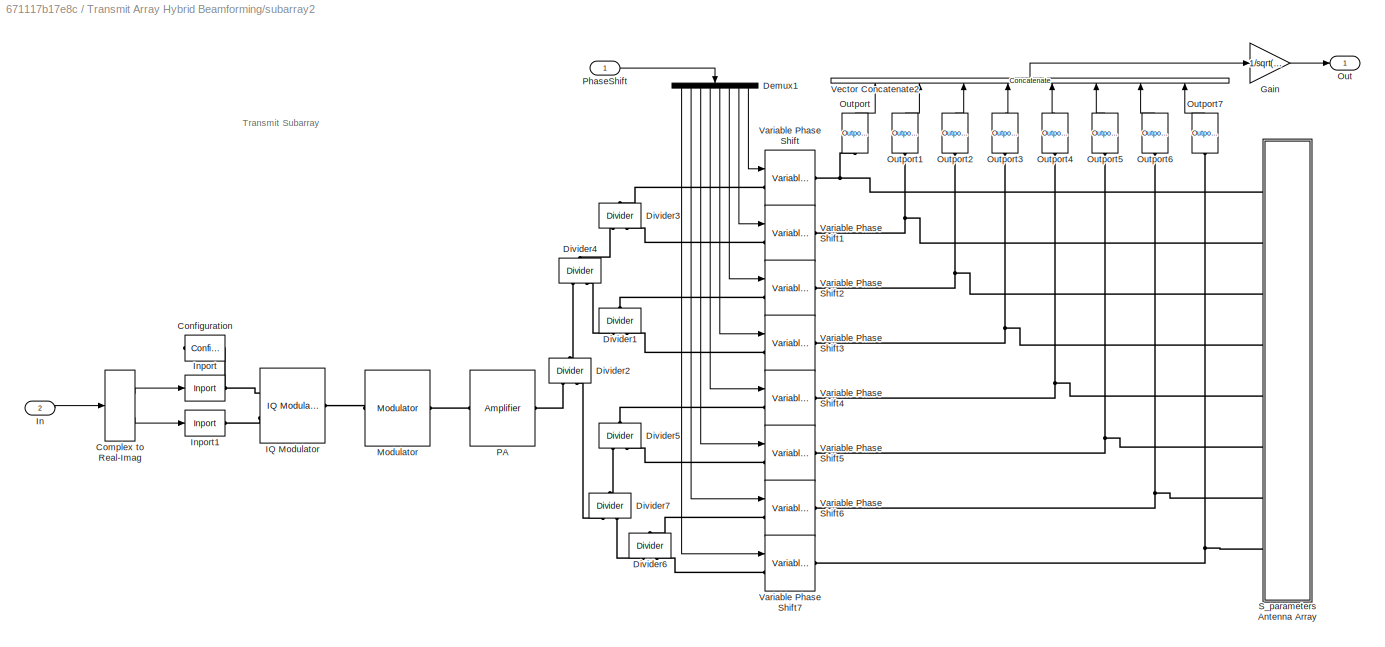
BLOCK [SubSystem] Transmit Array Hybrid Beamforming/subarray2
  Ports = [2, 1]
  RequestExecContextInheritance = off
BLOCK [ComplexToRealImag] Transmit Array Hybrid Beamforming/subarray2/Complex to Real-Imag
  Ports = [1, 2]
BLOCK [Reference] Transmit Array Hybrid Beamforming/subarray2/Configuration  REF=simrfV2util1/Configuration
  NameLocation = top
  Ports = [0, 0, 0, 0, 0, 1]
  SourceBlock = simrfV2util1/Configuration
  SourceProductName = RF Blockset
  SourceType = Configuration
BLOCK [Demux] Transmit Array Hybrid Beamforming/subarray2/Demux1
  NameLocation = left
  Outputs = 8
  Ports = [1, 8]
BLOCK [Reference] Transmit Array Hybrid Beamforming/subarray2/Divider1  REF=simrfV2junction1/Divider
  NameLocation = right
  Ports = [0, 0, 0, 0, 0, 2, 1]
  SourceBlock = simrfV2junction1/Divider
  SourceProductName = RF Blockset
  SourceType = Ideal Dividers
  UserDataPersistent = on
BLOCK [Reference] Transmit Array Hybrid Beamforming/subarray2/Divider2  REF=simrfV2junction1/Divider
  NameLocation = right
  Ports = [0, 0, 0, 0, 0, 2, 1]
  SourceBlock = simrfV2junction1/Divider
  SourceProductName = RF Blockset
  SourceType = Ideal Dividers
  UserDataPersistent = on
BLOCK [Reference] Transmit Array Hybrid Beamforming/subarray2/Divider3  REF=simrfV2junction1/Divider
  NameLocation = right
  Ports = [0, 0, 0, 0, 0, 2, 1]
  SourceBlock = simrfV2junction1/Divider
  SourceProductName = RF Blockset
  SourceType = Ideal Dividers
  UserDataPersistent = on
BLOCK [Reference] Transmit Array Hybrid Beamforming/subarray2/Divider4  REF=simrfV2junction1/Divider
  NameLocation = right
  Ports = [0, 0, 0, 0, 0, 2, 1]
  SourceBlock = simrfV2junction1/Divider
  SourceProductName = RF Blockset
  SourceType = Ideal Dividers
  UserDataPersistent = on
BLOCK [Reference] Transmit Array Hybrid Beamforming/subarray2/Divider5  REF=simrfV2junction1/Divider
  NameLocation = right
  Ports = [0, 0, 0, 0, 0, 2, 1]
  SourceBlock = simrfV2junction1/Divider
  SourceProductName = RF Blockset
  SourceType = Ideal Dividers
  UserDataPersistent = on
BLOCK [Reference] Transmit Array Hybrid Beamforming/subarray2/Divider6  REF=simrfV2junction1/Divider
  NameLocation = right
  Ports = [0, 0, 0, 0, 0, 2, 1]
  SourceBlock = simrfV2junction1/Divider
  SourceProductName = RF Blockset
  SourceType = Ideal Dividers
  UserDataPersistent = on
BLOCK [Reference] Transmit Array Hybrid Beamforming/subarray2/Divider7  REF=simrfV2junction1/Divider
  NameLocation = right
  Ports = [0, 0, 0, 0, 0, 2, 1]
  SourceBlock = simrfV2junction1/Divider
  SourceProductName = RF Blockset
  SourceType = Ideal Dividers
  UserDataPersistent = on
BLOCK [Gain] Transmit Array Hybrid Beamforming/subarray2/Gain
  Gain = 1/sqrt(50)
BLOCK [Reference] Transmit Array Hybrid Beamforming/subarray2/IQ Modulator  REF=simrfV2systems/IQ Modulator
  Ports = [0, 0, 0, 0, 0, 2, 1]
  SourceBlock = simrfV2systems/IQ Modulator
  SourceProductName = RF Blockset
  SourceType = IQ Modulator
BLOCK [Inport] Transmit Array Hybrid Beamforming/subarray2/In
  OutDataTypeStr = double
  Port = 2
  SamplingMode = Sample based
  SignalType = complex
BLOCK [Reference] Transmit Array Hybrid Beamforming/subarray2/Inport  REF=simrfV2util1/Inport
  Ports = [1, 0, 0, 0, 0, 0, 1]
  SourceBlock = simrfV2util1/Inport
  SourceProductName = RF Blockset
  SourceType = Inport
BLOCK [Reference] Transmit Array Hybrid Beamforming/subarray2/Inport1  REF=simrfV2util1/Inport
  Ports = [1, 0, 0, 0, 0, 0, 1]
  SourceBlock = simrfV2util1/Inport
  SourceProductName = RF Blockset
  SourceType = Inport
BLOCK [Reference] Transmit Array Hybrid Beamforming/subarray2/Modulator  REF=simrfV2systems/Modulator
  Ports = [0, 0, 0, 0, 0, 1, 1]
  SourceBlock = simrfV2systems/Modulator
  SourceProductName = RF Blockset
  SourceType = Modulator
BLOCK [Outport] Transmit Array Hybrid Beamforming/subarray2/Out
  OutDataTypeStr = double
  SamplingMode = Sample based
  SignalType = complex
  VectorParamsAs1DForOutWhenUnconnected = off
BLOCK [Reference] Transmit Array Hybrid Beamforming/subarray2/Outport  REF=simrfV2util1/Outport
  NameLocation = right
  Ports = [0, 1, 0, 0, 0, 1]
  SourceBlock = simrfV2util1/Outport
  SourceProductName = RF Blockset
  SourceType = Outport
BLOCK [Reference] Transmit Array Hybrid Beamforming/subarray2/Outport1  REF=simrfV2util1/Outport
  NameLocation = right
  Ports = [0, 1, 0, 0, 0, 1]
  SourceBlock = simrfV2util1/Outport
  SourceProductName = RF Blockset
  SourceType = Outport
BLOCK [Reference] Transmit Array Hybrid Beamforming/subarray2/Outport2  REF=simrfV2util1/Outport
  NameLocation = right
  Ports = [0, 1, 0, 0, 0, 1]
  SourceBlock = simrfV2util1/Outport
  SourceProductName = RF Blockset
  SourceType = Outport
BLOCK [Reference] Transmit Array Hybrid Beamforming/subarray2/Outport3  REF=simrfV2util1/Outport
  NameLocation = right
  Ports = [0, 1, 0, 0, 0, 1]
  SourceBlock = simrfV2util1/Outport
  SourceProductName = RF Blockset
  SourceType = Outport
BLOCK [Reference] Transmit Array Hybrid Beamforming/subarray2/Outport4  REF=simrfV2util1/Outport
  NameLocation = right
  Ports = [0, 1, 0, 0, 0, 1]
  SourceBlock = simrfV2util1/Outport
  SourceProductName = RF Blockset
  SourceType = Outport
BLOCK [Reference] Transmit Array Hybrid Beamforming/subarray2/Outport5  REF=simrfV2util1/Outport
  NameLocation = right
  Ports = [0, 1, 0, 0, 0, 1]
  SourceBlock = simrfV2util1/Outport
  SourceProductName = RF Blockset
  SourceType = Outport
BLOCK [Reference] Transmit Array Hybrid Beamforming/subarray2/Outport6  REF=simrfV2util1/Outport
  NameLocation = right
  Ports = [0, 1, 0, 0, 0, 1]
  SourceBlock = simrfV2util1/Outport
  SourceProductName = RF Blockset
  SourceType = Outport
BLOCK [Reference] Transmit Array Hybrid Beamforming/subarray2/Outport7  REF=simrfV2util1/Outport
  NameLocation = right
  Ports = [0, 1, 0, 0, 0, 1]
  SourceBlock = simrfV2util1/Outport
  SourceProductName = RF Blockset
  SourceType = Outport
BLOCK [Reference] Transmit Array Hybrid Beamforming/subarray2/PA  REF=simrfV2elements/Amplifier
  Ports = [0, 0, 0, 0, 0, 1, 1]
  SourceBlock = simrfV2elements/Amplifier
  SourceProductName = RF Blockset
  SourceType = Amplifier
BLOCK [Inport] Transmit Array Hybrid Beamforming/subarray2/PhaseShift
  OutDataTypeStr = double
  SamplingMode = Sample based
  SignalType = real
BLOCK [SubSystem] Transmit Array Hybrid Beamforming/subarray2/S_parameters Antenna Array
  Ports = [0, 0, 0, 0, 0, 0, 8]
  RequestExecContextInheritance = off
BLOCK [PMIOPort] Transmit Array Hybrid Beamforming/subarray2/S_parameters Antenna Array/1
  NameLocation = top
  Side = Right
BLOCK [PMIOPort] Transmit Array Hybrid Beamforming/subarray2/S_parameters Antenna Array/2
  Port = 2
  Side = Right
BLOCK [PMIOPort] Transmit Array Hybrid Beamforming/subarray2/S_parameters Antenna Array/3
  Port = 3
  Side = Right
BLOCK [PMIOPort] Transmit Array Hybrid Beamforming/subarray2/S_parameters Antenna Array/4
  Port = 4
  Side = Right
BLOCK [PMIOPort] Transmit Array Hybrid Beamforming/subarray2/S_parameters Antenna Array/5
  Port = 5
  Side = Right
BLOCK [PMIOPort] Transmit Array Hybrid Beamforming/subarray2/S_parameters Antenna Array/6
  Port = 6
  Side = Right
BLOCK [PMIOPort] Transmit Array Hybrid Beamforming/subarray2/S_parameters Antenna Array/7
  Port = 7
  Side = Right
BLOCK [PMIOPort] Transmit Array Hybrid Beamforming/subarray2/S_parameters Antenna Array/8
  Port = 8
  Side = Right
BLOCK [Reference] Transmit Array Hybrid Beamforming/subarray2/S_parameters Antenna Array/S-parameters  REF=simrfV2elements/S-parameters
  Ports = [0, 0, 0, 0, 0, 4, 4]
  SourceBlock = simrfV2elements/S-parameters
  SourceProductName = RF Blockset
  SourceType = S-parameters
  UserDataPersistent = on
BLOCK [Reference] Transmit Array Hybrid Beamforming/subarray2/Variable Phase Shift  REF=simrfV2elements/Variable
Phase Shift
  Ports = [1, 0, 0, 0, 0, 1, 1]
  SourceBlock = simrfV2elements/Variable\nPhase Shift
  SourceProductName = RF Blockset
  SourceType = Variable Phase
BLOCK [Reference] Transmit Array Hybrid Beamforming/subarray2/Variable Phase Shift1  REF=simrfV2elements/Variable
Phase Shift
  Ports = [1, 0, 0, 0, 0, 1, 1]
  SourceBlock = simrfV2elements/Variable\nPhase Shift
  SourceProductName = RF Blockset
  SourceType = Variable Phase
BLOCK [Reference] Transmit Array Hybrid Beamforming/subarray2/Variable Phase Shift2  REF=simrfV2elements/Variable
Phase Shift
  Ports = [1, 0, 0, 0, 0, 1, 1]
  SourceBlock = simrfV2elements/Variable\nPhase Shift
  SourceProductName = RF Blockset
  SourceType = Variable Phase
BLOCK [Reference] Transmit Array Hybrid Beamforming/subarray2/Variable Phase Shift3  REF=simrfV2elements/Variable
Phase Shift
  Ports = [1, 0, 0, 0, 0, 1, 1]
  SourceBlock = simrfV2elements/Variable\nPhase Shift
  SourceProductName = RF Blockset
  SourceType = Variable Phase
BLOCK [Reference] Transmit Array Hybrid Beamforming/subarray2/Variable Phase Shift4  REF=simrfV2elements/Variable
Phase Shift
  Ports = [1, 0, 0, 0, 0, 1, 1]
  SourceBlock = simrfV2elements/Variable\nPhase Shift
  SourceProductName = RF Blockset
  SourceType = Variable Phase
BLOCK [Reference] Transmit Array Hybrid Beamforming/subarray2/Variable Phase Shift5  REF=simrfV2elements/Variable
Phase Shift
  Ports = [1, 0, 0, 0, 0, 1, 1]
  SourceBlock = simrfV2elements/Variable\nPhase Shift
  SourceProductName = RF Blockset
  SourceType = Variable Phase
BLOCK [Reference] Transmit Array Hybrid Beamforming/subarray2/Variable Phase Shift6  REF=simrfV2elements/Variable
Phase Shift
  Ports = [1, 0, 0, 0, 0, 1, 1]
  SourceBlock = simrfV2elements/Variable\nPhase Shift
  SourceProductName = RF Blockset
  SourceType = Variable Phase
BLOCK [Reference] Transmit Array Hybrid Beamforming/subarray2/Variable Phase Shift7  REF=simrfV2elements/Variable
Phase Shift
  Ports = [1, 0, 0, 0, 0, 1, 1]
  SourceBlock = simrfV2elements/Variable\nPhase Shift
  SourceProductName = RF Blockset
  SourceType = Variable Phase
BLOCK [Concatenate] Transmit Array Hybrid Beamforming/subarray2/Vector Concatenate2
  ConcatenateDimension = 2
  Mode = Multidimensional array
  NameLocation = right
  NumInputs = 8
  Ports = [8, 1]
BLOCK [SubSystem] Transmit Array Hybrid Beamforming/subarray3
  Ports = [2, 1]
  RequestExecContextInheritance = off
BLOCK [ComplexToRealImag] Transmit Array Hybrid Beamforming/subarray3/Complex to Real-Imag
  Ports = [1, 2]
BLOCK [Reference] Transmit Array Hybrid Beamforming/subarray3/Configuration  REF=simrfV2util1/Configuration
  NameLocation = top
  Ports = [0, 0, 0, 0, 0, 1]
  SourceBlock = simrfV2util1/Configuration
  SourceProductName = RF Blockset
  SourceType = Configuration
BLOCK [Demux] Transmit Array Hybrid Beamforming/subarray3/Demux1
  NameLocation = left
  Outputs = 8
  Ports = [1, 8]
BLOCK [Reference] Transmit Array Hybrid Beamforming/subarray3/Divider1  REF=simrfV2junction1/Divider
  NameLocation = right
  Ports = [0, 0, 0, 0, 0, 2, 1]
  SourceBlock = simrfV2junction1/Divider
  SourceProductName = RF Blockset
  SourceType = Ideal Dividers
  UserDataPersistent = on
BLOCK [Reference] Transmit Array Hybrid Beamforming/subarray3/Divider2  REF=simrfV2junction1/Divider
  NameLocation = right
  Ports = [0, 0, 0, 0, 0, 2, 1]
  SourceBlock = simrfV2junction1/Divider
  SourceProductName = RF Blockset
  SourceType = Ideal Dividers
  UserDataPersistent = on
BLOCK [Reference] Transmit Array Hybrid Beamforming/subarray3/Divider3  REF=simrfV2junction1/Divider
  NameLocation = right
  Ports = [0, 0, 0, 0, 0, 2, 1]
  SourceBlock = simrfV2junction1/Divider
  SourceProductName = RF Blockset
  SourceType = Ideal Dividers
  UserDataPersistent = on
BLOCK [Reference] Transmit Array Hybrid Beamforming/subarray3/Divider4  REF=simrfV2junction1/Divider
  NameLocation = right
  Ports = [0, 0, 0, 0, 0, 2, 1]
  SourceBlock = simrfV2junction1/Divider
  SourceProductName = RF Blockset
  SourceType = Ideal Dividers
  UserDataPersistent = on
BLOCK [Reference] Transmit Array Hybrid Beamforming/subarray3/Divider5  REF=simrfV2junction1/Divider
  NameLocation = right
  Ports = [0, 0, 0, 0, 0, 2, 1]
  SourceBlock = simrfV2junction1/Divider
  SourceProductName = RF Blockset
  SourceType = Ideal Dividers
  UserDataPersistent = on
BLOCK [Reference] Transmit Array Hybrid Beamforming/subarray3/Divider6  REF=simrfV2junction1/Divider
  NameLocation = right
  Ports = [0, 0, 0, 0, 0, 2, 1]
  SourceBlock = simrfV2junction1/Divider
  SourceProductName = RF Blockset
  SourceType = Ideal Dividers
  UserDataPersistent = on
BLOCK [Reference] Transmit Array Hybrid Beamforming/subarray3/Divider7  REF=simrfV2junction1/Divider
  NameLocation = right
  Ports = [0, 0, 0, 0, 0, 2, 1]
  SourceBlock = simrfV2junction1/Divider
  SourceProductName = RF Blockset
  SourceType = Ideal Dividers
  UserDataPersistent = on
BLOCK [Gain] Transmit Array Hybrid Beamforming/subarray3/Gain
  Gain = 1/sqrt(50)
BLOCK [Reference] Transmit Array Hybrid Beamforming/subarray3/IQ Modulator  REF=simrfV2systems/IQ Modulator
  Ports = [0, 0, 0, 0, 0, 2, 1]
  SourceBlock = simrfV2systems/IQ Modulator
  SourceProductName = RF Blockset
  SourceType = IQ Modulator
BLOCK [Inport] Transmit Array Hybrid Beamforming/subarray3/In
  OutDataTypeStr = double
  Port = 2
  SamplingMode = Sample based
  SignalType = complex
BLOCK [Reference] Transmit Array Hybrid Beamforming/subarray3/Inport  REF=simrfV2util1/Inport
  Ports = [1, 0, 0, 0, 0, 0, 1]
  SourceBlock = simrfV2util1/Inport
  SourceProductName = RF Blockset
  SourceType = Inport
BLOCK [Reference] Transmit Array Hybrid Beamforming/subarray3/Inport1  REF=simrfV2util1/Inport
  Ports = [1, 0, 0, 0, 0, 0, 1]
  SourceBlock = simrfV2util1/Inport
  SourceProductName = RF Blockset
  SourceType = Inport
BLOCK [Reference] Transmit Array Hybrid Beamforming/subarray3/Modulator  REF=simrfV2systems/Modulator
  Ports = [0, 0, 0, 0, 0, 1, 1]
  SourceBlock = simrfV2systems/Modulator
  SourceProductName = RF Blockset
  SourceType = Modulator
BLOCK [Outport] Transmit Array Hybrid Beamforming/subarray3/Out
  OutDataTypeStr = double
  SamplingMode = Sample based
  SignalType = complex
  VectorParamsAs1DForOutWhenUnconnected = off
BLOCK [Reference] Transmit Array Hybrid Beamforming/subarray3/Outport  REF=simrfV2util1/Outport
  NameLocation = right
  Ports = [0, 1, 0, 0, 0, 1]
  SourceBlock = simrfV2util1/Outport
  SourceProductName = RF Blockset
  SourceType = Outport
BLOCK [Reference] Transmit Array Hybrid Beamforming/subarray3/Outport1  REF=simrfV2util1/Outport
  NameLocation = right
  Ports = [0, 1, 0, 0, 0, 1]
  SourceBlock = simrfV2util1/Outport
  SourceProductName = RF Blockset
  SourceType = Outport
BLOCK [Reference] Transmit Array Hybrid Beamforming/subarray3/Outport2  REF=simrfV2util1/Outport
  NameLocation = right
  Ports = [0, 1, 0, 0, 0, 1]
  SourceBlock = simrfV2util1/Outport
  SourceProductName = RF Blockset
  SourceType = Outport
BLOCK [Reference] Transmit Array Hybrid Beamforming/subarray3/Outport3  REF=simrfV2util1/Outport
  NameLocation = right
  Ports = [0, 1, 0, 0, 0, 1]
  SourceBlock = simrfV2util1/Outport
  SourceProductName = RF Blockset
  SourceType = Outport
BLOCK [Reference] Transmit Array Hybrid Beamforming/subarray3/Outport4  REF=simrfV2util1/Outport
  NameLocation = right
  Ports = [0, 1, 0, 0, 0, 1]
  SourceBlock = simrfV2util1/Outport
  SourceProductName = RF Blockset
  SourceType = Outport
BLOCK [Reference] Transmit Array Hybrid Beamforming/subarray3/Outport5  REF=simrfV2util1/Outport
  NameLocation = right
  Ports = [0, 1, 0, 0, 0, 1]
  SourceBlock = simrfV2util1/Outport
  SourceProductName = RF Blockset
  SourceType = Outport
BLOCK [Reference] Transmit Array Hybrid Beamforming/subarray3/Outport6  REF=simrfV2util1/Outport
  NameLocation = right
  Ports = [0, 1, 0, 0, 0, 1]
  SourceBlock = simrfV2util1/Outport
  SourceProductName = RF Blockset
  SourceType = Outport
BLOCK [Reference] Transmit Array Hybrid Beamforming/subarray3/Outport7  REF=simrfV2util1/Outport
  NameLocation = right
  Ports = [0, 1, 0, 0, 0, 1]
  SourceBlock = simrfV2util1/Outport
  SourceProductName = RF Blockset
  SourceType = Outport
BLOCK [Reference] Transmit Array Hybrid Beamforming/subarray3/PA  REF=simrfV2elements/Amplifier
  Ports = [0, 0, 0, 0, 0, 1, 1]
  SourceBlock = simrfV2elements/Amplifier
  SourceProductName = RF Blockset
  SourceType = Amplifier
BLOCK [Inport] Transmit Array Hybrid Beamforming/subarray3/PhaseShift
  OutDataTypeStr = double
  SamplingMode = Sample based
  SignalType = real
BLOCK [SubSystem] Transmit Array Hybrid Beamforming/subarray3/S_parameters Antenna Array
  Ports = [0, 0, 0, 0, 0, 0, 8]
  RequestExecContextInheritance = off
BLOCK [PMIOPort] Transmit Array Hybrid Beamforming/subarray3/S_parameters Antenna Array/1
  NameLocation = top
  Side = Right
BLOCK [PMIOPort] Transmit Array Hybrid Beamforming/subarray3/S_parameters Antenna Array/2
  Port = 2
  Side = Right
BLOCK [PMIOPort] Transmit Array Hybrid Beamforming/subarray3/S_parameters Antenna Array/3
  Port = 3
  Side = Right
BLOCK [PMIOPort] Transmit Array Hybrid Beamforming/subarray3/S_parameters Antenna Array/4
  Port = 4
  Side = Right
BLOCK [PMIOPort] Transmit Array Hybrid Beamforming/subarray3/S_parameters Antenna Array/5
  Port = 5
  Side = Right
BLOCK [PMIOPort] Transmit Array Hybrid Beamforming/subarray3/S_parameters Antenna Array/6
  Port = 6
  Side = Right
BLOCK [PMIOPort] Transmit Array Hybrid Beamforming/subarray3/S_parameters Antenna Array/7
  Port = 7
  Side = Right
BLOCK [PMIOPort] Transmit Array Hybrid Beamforming/subarray3/S_parameters Antenna Array/8
  Port = 8
  Side = Right
BLOCK [Reference] Transmit Array Hybrid Beamforming/subarray3/S_parameters Antenna Array/S-parameters  REF=simrfV2elements/S-parameters
  Ports = [0, 0, 0, 0, 0, 4, 4]
  SourceBlock = simrfV2elements/S-parameters
  SourceProductName = RF Blockset
  SourceType = S-parameters
  UserDataPersistent = on
BLOCK [Reference] Transmit Array Hybrid Beamforming/subarray3/Variable Phase Shift  REF=simrfV2elements/Variable
Phase Shift
  Ports = [1, 0, 0, 0, 0, 1, 1]
  SourceBlock = simrfV2elements/Variable\nPhase Shift
  SourceProductName = RF Blockset
  SourceType = Variable Phase
BLOCK [Reference] Transmit Array Hybrid Beamforming/subarray3/Variable Phase Shift1  REF=simrfV2elements/Variable
Phase Shift
  Ports = [1, 0, 0, 0, 0, 1, 1]
  SourceBlock = simrfV2elements/Variable\nPhase Shift
  SourceProductName = RF Blockset
  SourceType = Variable Phase
BLOCK [Reference] Transmit Array Hybrid Beamforming/subarray3/Variable Phase Shift2  REF=simrfV2elements/Variable
Phase Shift
  Ports = [1, 0, 0, 0, 0, 1, 1]
  SourceBlock = simrfV2elements/Variable\nPhase Shift
  SourceProductName = RF Blockset
  SourceType = Variable Phase
BLOCK [Reference] Transmit Array Hybrid Beamforming/subarray3/Variable Phase Shift3  REF=simrfV2elements/Variable
Phase Shift
  Ports = [1, 0, 0, 0, 0, 1, 1]
  SourceBlock = simrfV2elements/Variable\nPhase Shift
  SourceProductName = RF Blockset
  SourceType = Variable Phase
BLOCK [Reference] Transmit Array Hybrid Beamforming/subarray3/Variable Phase Shift4  REF=simrfV2elements/Variable
Phase Shift
  Ports = [1, 0, 0, 0, 0, 1, 1]
  SourceBlock = simrfV2elements/Variable\nPhase Shift
  SourceProductName = RF Blockset
  SourceType = Variable Phase
BLOCK [Reference] Transmit Array Hybrid Beamforming/subarray3/Variable Phase Shift5  REF=simrfV2elements/Variable
Phase Shift
  Ports = [1, 0, 0, 0, 0, 1, 1]
  SourceBlock = simrfV2elements/Variable\nPhase Shift
  SourceProductName = RF Blockset
  SourceType = Variable Phase
BLOCK [Reference] Transmit Array Hybrid Beamforming/subarray3/Variable Phase Shift6  REF=simrfV2elements/Variable
Phase Shift
  Ports = [1, 0, 0, 0, 0, 1, 1]
  SourceBlock = simrfV2elements/Variable\nPhase Shift
  SourceProductName = RF Blockset
  SourceType = Variable Phase
BLOCK [Reference] Transmit Array Hybrid Beamforming/subarray3/Variable Phase Shift7  REF=simrfV2elements/Variable
Phase Shift
  Ports = [1, 0, 0, 0, 0, 1, 1]
  SourceBlock = simrfV2elements/Variable\nPhase Shift
  SourceProductName = RF Blockset
  SourceType = Variable Phase
BLOCK [Concatenate] Transmit Array Hybrid Beamforming/subarray3/Vector Concatenate2
  ConcatenateDimension = 2
  Mode = Multidimensional array
  NameLocation = right
  NumInputs = 8
  Ports = [8, 1]
BLOCK [SubSystem] Transmit Array Hybrid Beamforming/subarray4
  Ports = [2, 1]
  RequestExecContextInheritance = off
BLOCK [ComplexToRealImag] Transmit Array Hybrid Beamforming/subarray4/Complex to Real-Imag
  Ports = [1, 2]
BLOCK [Reference] Transmit Array Hybrid Beamforming/subarray4/Configuration  REF=simrfV2util1/Configuration
  NameLocation = top
  Ports = [0, 0, 0, 0, 0, 1]
  SourceBlock = simrfV2util1/Configuration
  SourceProductName = RF Blockset
  SourceType = Configuration
BLOCK [Demux] Transmit Array Hybrid Beamforming/subarray4/Demux1
  NameLocation = left
  Outputs = 8
  Ports = [1, 8]
BLOCK [Reference] Transmit Array Hybrid Beamforming/subarray4/Divider1  REF=simrfV2junction1/Divider
  NameLocation = right
  Ports = [0, 0, 0, 0, 0, 2, 1]
  SourceBlock = simrfV2junction1/Divider
  SourceProductName = RF Blockset
  SourceType = Ideal Dividers
  UserDataPersistent = on
BLOCK [Reference] Transmit Array Hybrid Beamforming/subarray4/Divider2  REF=simrfV2junction1/Divider
  NameLocation = right
  Ports = [0, 0, 0, 0, 0, 2, 1]
  SourceBlock = simrfV2junction1/Divider
  SourceProductName = RF Blockset
  SourceType = Ideal Dividers
  UserDataPersistent = on
BLOCK [Reference] Transmit Array Hybrid Beamforming/subarray4/Divider3  REF=simrfV2junction1/Divider
  NameLocation = right
  Ports = [0, 0, 0, 0, 0, 2, 1]
  SourceBlock = simrfV2junction1/Divider
  SourceProductName = RF Blockset
  SourceType = Ideal Dividers
  UserDataPersistent = on
BLOCK [Reference] Transmit Array Hybrid Beamforming/subarray4/Divider4  REF=simrfV2junction1/Divider
  NameLocation = right
  Ports = [0, 0, 0, 0, 0, 2, 1]
  SourceBlock = simrfV2junction1/Divider
  SourceProductName = RF Blockset
  SourceType = Ideal Dividers
  UserDataPersistent = on
BLOCK [Reference] Transmit Array Hybrid Beamforming/subarray4/Divider5  REF=simrfV2junction1/Divider
  NameLocation = right
  Ports = [0, 0, 0, 0, 0, 2, 1]
  SourceBlock = simrfV2junction1/Divider
  SourceProductName = RF Blockset
  SourceType = Ideal Dividers
  UserDataPersistent = on
BLOCK [Reference] Transmit Array Hybrid Beamforming/subarray4/Divider6  REF=simrfV2junction1/Divider
  NameLocation = right
  Ports = [0, 0, 0, 0, 0, 2, 1]
  SourceBlock = simrfV2junction1/Divider
  SourceProductName = RF Blockset
  SourceType = Ideal Dividers
  UserDataPersistent = on
BLOCK [Reference] Transmit Array Hybrid Beamforming/subarray4/Divider7  REF=simrfV2junction1/Divider
  NameLocation = right
  Ports = [0, 0, 0, 0, 0, 2, 1]
  SourceBlock = simrfV2junction1/Divider
  SourceProductName = RF Blockset
  SourceType = Ideal Dividers
  UserDataPersistent = on
BLOCK [Gain] Transmit Array Hybrid Beamforming/subarray4/Gain
  Gain = 1/sqrt(50)
BLOCK [Reference] Transmit Array Hybrid Beamforming/subarray4/IQ Modulator  REF=simrfV2systems/IQ Modulator
  Ports = [0, 0, 0, 0, 0, 2, 1]
  SourceBlock = simrfV2systems/IQ Modulator
  SourceProductName = RF Blockset
  SourceType = IQ Modulator
BLOCK [Inport] Transmit Array Hybrid Beamforming/subarray4/In
  OutDataTypeStr = double
  Port = 2
  SamplingMode = Sample based
  SignalType = complex
BLOCK [Reference] Transmit Array Hybrid Beamforming/subarray4/Inport  REF=simrfV2util1/Inport
  Ports = [1, 0, 0, 0, 0, 0, 1]
  SourceBlock = simrfV2util1/Inport
  SourceProductName = RF Blockset
  SourceType = Inport
BLOCK [Reference] Transmit Array Hybrid Beamforming/subarray4/Inport1  REF=simrfV2util1/Inport
  Ports = [1, 0, 0, 0, 0, 0, 1]
  SourceBlock = simrfV2util1/Inport
  SourceProductName = RF Blockset
  SourceType = Inport
BLOCK [Reference] Transmit Array Hybrid Beamforming/subarray4/Modulator  REF=simrfV2systems/Modulator
  Ports = [0, 0, 0, 0, 0, 1, 1]
  SourceBlock = simrfV2systems/Modulator
  SourceProductName = RF Blockset
  SourceType = Modulator
BLOCK [Outport] Transmit Array Hybrid Beamforming/subarray4/Out
  OutDataTypeStr = double
  SamplingMode = Sample based
  SignalType = complex
  VectorParamsAs1DForOutWhenUnconnected = off
BLOCK [Reference] Transmit Array Hybrid Beamforming/subarray4/Outport  REF=simrfV2util1/Outport
  NameLocation = right
  Ports = [0, 1, 0, 0, 0, 1]
  SourceBlock = simrfV2util1/Outport
  SourceProductName = RF Blockset
  SourceType = Outport
BLOCK [Reference] Transmit Array Hybrid Beamforming/subarray4/Outport1  REF=simrfV2util1/Outport
  NameLocation = right
  Ports = [0, 1, 0, 0, 0, 1]
  SourceBlock = simrfV2util1/Outport
  SourceProductName = RF Blockset
  SourceType = Outport
BLOCK [Reference] Transmit Array Hybrid Beamforming/subarray4/Outport2  REF=simrfV2util1/Outport
  NameLocation = right
  Ports = [0, 1, 0, 0, 0, 1]
  SourceBlock = simrfV2util1/Outport
  SourceProductName = RF Blockset
  SourceType = Outport
BLOCK [Reference] Transmit Array Hybrid Beamforming/subarray4/Outport3  REF=simrfV2util1/Outport
  NameLocation = right
  Ports = [0, 1, 0, 0, 0, 1]
  SourceBlock = simrfV2util1/Outport
  SourceProductName = RF Blockset
  SourceType = Outport
BLOCK [Reference] Transmit Array Hybrid Beamforming/subarray4/Outport4  REF=simrfV2util1/Outport
  NameLocation = right
  Ports = [0, 1, 0, 0, 0, 1]
  SourceBlock = simrfV2util1/Outport
  SourceProductName = RF Blockset
  SourceType = Outport
BLOCK [Reference] Transmit Array Hybrid Beamforming/subarray4/Outport5  REF=simrfV2util1/Outport
  NameLocation = right
  Ports = [0, 1, 0, 0, 0, 1]
  SourceBlock = simrfV2util1/Outport
  SourceProductName = RF Blockset
  SourceType = Outport
BLOCK [Reference] Transmit Array Hybrid Beamforming/subarray4/Outport6  REF=simrfV2util1/Outport
  NameLocation = right
  Ports = [0, 1, 0, 0, 0, 1]
  SourceBlock = simrfV2util1/Outport
  SourceProductName = RF Blockset
  SourceType = Outport
BLOCK [Reference] Transmit Array Hybrid Beamforming/subarray4/Outport7  REF=simrfV2util1/Outport
  NameLocation = right
  Ports = [0, 1, 0, 0, 0, 1]
  SourceBlock = simrfV2util1/Outport
  SourceProductName = RF Blockset
  SourceType = Outport
BLOCK [Reference] Transmit Array Hybrid Beamforming/subarray4/PA  REF=simrfV2elements/Amplifier
  Ports = [0, 0, 0, 0, 0, 1, 1]
  SourceBlock = simrfV2elements/Amplifier
  SourceProductName = RF Blockset
  SourceType = Amplifier
BLOCK [Inport] Transmit Array Hybrid Beamforming/subarray4/PhaseShift
  OutDataTypeStr = double
  SamplingMode = Sample based
  SignalType = real
BLOCK [SubSystem] Transmit Array Hybrid Beamforming/subarray4/S_parameters Antenna Array
  Ports = [0, 0, 0, 0, 0, 0, 8]
  RequestExecContextInheritance = off
BLOCK [PMIOPort] Transmit Array Hybrid Beamforming/subarray4/S_parameters Antenna Array/1
  NameLocation = top
  Side = Right
BLOCK [PMIOPort] Transmit Array Hybrid Beamforming/subarray4/S_parameters Antenna Array/2
  Port = 2
  Side = Right
BLOCK [PMIOPort] Transmit Array Hybrid Beamforming/subarray4/S_parameters Antenna Array/3
  Port = 3
  Side = Right
BLOCK [PMIOPort] Transmit Array Hybrid Beamforming/subarray4/S_parameters Antenna Array/4
  Port = 4
  Side = Right
BLOCK [PMIOPort] Transmit Array Hybrid Beamforming/subarray4/S_parameters Antenna Array/5
  Port = 5
  Side = Right
BLOCK [PMIOPort] Transmit Array Hybrid Beamforming/subarray4/S_parameters Antenna Array/6
  Port = 6
  Side = Right
BLOCK [PMIOPort] Transmit Array Hybrid Beamforming/subarray4/S_parameters Antenna Array/7
  Port = 7
  Side = Right
BLOCK [PMIOPort] Transmit Array Hybrid Beamforming/subarray4/S_parameters Antenna Array/8
  Port = 8
  Side = Right
BLOCK [Reference] Transmit Array Hybrid Beamforming/subarray4/S_parameters Antenna Array/S-parameters  REF=simrfV2elements/S-parameters
  Ports = [0, 0, 0, 0, 0, 4, 4]
  SourceBlock = simrfV2elements/S-parameters
  SourceProductName = RF Blockset
  SourceType = S-parameters
  UserDataPersistent = on
BLOCK [Reference] Transmit Array Hybrid Beamforming/subarray4/Variable Phase Shift  REF=simrfV2elements/Variable
Phase Shift
  Ports = [1, 0, 0, 0, 0, 1, 1]
  SourceBlock = simrfV2elements/Variable\nPhase Shift
  SourceProductName = RF Blockset
  SourceType = Variable Phase
BLOCK [Reference] Transmit Array Hybrid Beamforming/subarray4/Variable Phase Shift1  REF=simrfV2elements/Variable
Phase Shift
  Ports = [1, 0, 0, 0, 0, 1, 1]
  SourceBlock = simrfV2elements/Variable\nPhase Shift
  SourceProductName = RF Blockset
  SourceType = Variable Phase
BLOCK [Reference] Transmit Array Hybrid Beamforming/subarray4/Variable Phase Shift2  REF=simrfV2elements/Variable
Phase Shift
  Ports = [1, 0, 0, 0, 0, 1, 1]
  SourceBlock = simrfV2elements/Variable\nPhase Shift
  SourceProductName = RF Blockset
  SourceType = Variable Phase
BLOCK [Reference] Transmit Array Hybrid Beamforming/subarray4/Variable Phase Shift3  REF=simrfV2elements/Variable
Phase Shift
  Ports = [1, 0, 0, 0, 0, 1, 1]
  SourceBlock = simrfV2elements/Variable\nPhase Shift
  SourceProductName = RF Blockset
  SourceType = Variable Phase
BLOCK [Reference] Transmit Array Hybrid Beamforming/subarray4/Variable Phase Shift4  REF=simrfV2elements/Variable
Phase Shift
  Ports = [1, 0, 0, 0, 0, 1, 1]
  SourceBlock = simrfV2elements/Variable\nPhase Shift
  SourceProductName = RF Blockset
  SourceType = Variable Phase
BLOCK [Reference] Transmit Array Hybrid Beamforming/subarray4/Variable Phase Shift5  REF=simrfV2elements/Variable
Phase Shift
  Ports = [1, 0, 0, 0, 0, 1, 1]
  SourceBlock = simrfV2elements/Variable\nPhase Shift
  SourceProductName = RF Blockset
  SourceType = Variable Phase
BLOCK [Reference] Transmit Array Hybrid Beamforming/subarray4/Variable Phase Shift6  REF=simrfV2elements/Variable
Phase Shift
  Ports = [1, 0, 0, 0, 0, 1, 1]
  SourceBlock = simrfV2elements/Variable\nPhase Shift
  SourceProductName = RF Blockset
  SourceType = Variable Phase
BLOCK [Reference] Transmit Array Hybrid Beamforming/subarray4/Variable Phase Shift7  REF=simrfV2elements/Variable
Phase Shift
  Ports = [1, 0, 0, 0, 0, 1, 1]
  SourceBlock = simrfV2elements/Variable\nPhase Shift
  SourceProductName = RF Blockset
  SourceType = Variable Phase
BLOCK [Concatenate] Transmit Array Hybrid Beamforming/subarray4/Vector Concatenate2
  ConcatenateDimension = 2
  Mode = Multidimensional array
  NameLocation = right
  NumInputs = 8
  Ports = [8, 1]
ANNOTATION (root): <copyright redacted>
ANNOTATION (root): RF mmWave Transmitter and Receiver with Hybrid Beamforming
ANNOTATION QPSK Receiver: QPSK Receiver
ANNOTATION QPSK Receiver/Data Decoding/Barker Code Symbol Generation : Regenerate a QPSK-modulated unipolar Barker code sequence to be compared with the received data
ANNOTATION QPSK Receiver/Data Decoding/Phase Ambiguity Correction & Demodulation: Phase Ambiguity Resolution and Demodulation
ANNOTATION QPSK Receiver/Data Decoding/Phase Offset Estimator: 1. The original signal is expressed as y(t) = x(t)e^{j\phi}+n(t), t = 1, 2, ..., N 2. y_1(t) = x{*}(t)y(t) = e^{j\phi} + x{*}(t)n(t) The goal is to estimate the value \phi from the observation y_1(t), t = 1, 2, ...N i.e., estimate the value B = e^{j\phi}, and \phi = angle(B) 3. Suppose n(t) yields to a i.i.d. complex AWGN distribution N(0,\sigma^2). Then a non-biased estimator could be B_{est} = 1...<+91ch>
ANNOTATION QPSK TX: QPSK Transmitter
ANNOTATION QPSK TX/Bit Generation: Each data frame contains 26 bits header (For Sync Purpose) and 174 bits data bits, first 105 bits contain "Hello world ###" message. Scrambler is there to improve data transition density and frequency offset estimation.
ANNOTATION Receive Array: Receive Array
ANNOTATION Transmit Array Hybrid Beamforming: Transmit Array
ANNOTATION Transmit Array Hybrid Beamforming/Beamformers: Transmit Array Beamformers
ANNOTATION Transmit Array Hybrid Beamforming/subarray1: Transmit Subarray
ANNOTATION Transmit Array Hybrid Beamforming/subarray2: Transmit Subarray
ANNOTATION Transmit Array Hybrid Beamforming/subarray3: Transmit Subarray
ANNOTATION Transmit Array Hybrid Beamforming/subarray4: Transmit Subarray
LINE Channel:1 -> Receive Array:2
LINE From1:1 -> TX-RX Spectrum:2
LINE From:1 -> TX-RX Spectrum:1
NET QPSK Receiver/AGC:1 -> QPSK Receiver/Goto:1, QPSK Receiver/Raised Cosine Receive Filter1:1
LINE QPSK Receiver/ASCII to String:1 -> QPSK Receiver/Decoded Message:1
LINE QPSK Receiver/Data Decoding/Barker Code Symbol Generation /Constant Barker Code:1 -> QPSK Receiver/Data Decoding/Barker Code Symbol Generation /Repeat:1
LINE QPSK Receiver/Data Decoding/Barker Code Symbol Generation /QPSK Modulator Baseband:1 -> QPSK Receiver/Data Decoding/Barker Code Symbol Generation /Out:1
LINE QPSK Receiver/Data Decoding/Barker Code Symbol Generation /Repeat:1 -> QPSK Receiver/Data Decoding/Barker Code Symbol Generation /QPSK Modulator Baseband:1
LINE QPSK Receiver/Data Decoding/Barker Code Symbol Generation :1 -> QPSK Receiver/Data Decoding/Phase Offset Estimator:1
LINE QPSK Receiver/Data Decoding/Bit to Integer Converter:1 -> QPSK Receiver/Data Decoding/Out1:1
LINE QPSK Receiver/Data Decoding/Descrambling/Descrambler1:1 -> QPSK Receiver/Data Decoding/Descrambling/Selector2:1
LINE QPSK Receiver/Data Decoding/Descrambling/In:1 -> QPSK Receiver/Data Decoding/Descrambling/Selector1:1
LINE QPSK Receiver/Data Decoding/Descrambling/Selector1:1 -> QPSK Receiver/Data Decoding/Descrambling/Descrambler1:1
LINE QPSK Receiver/Data Decoding/Descrambling/Selector2:1 -> QPSK Receiver/Data Decoding/Descrambling/Out:1
LINE QPSK Receiver/Data Decoding/Descrambling:1 -> QPSK Receiver/Data Decoding/Bit to Integer Converter:1
NET QPSK Receiver/Data Decoding/Phase Ambiguity Correction & Demodulation/Complex Phase Shift:1 -> QPSK Receiver/Data Decoding/Phase Ambiguity Correction & Demodulation/Demodulator Input:1, QPSK Receiver/Data Decoding/Phase Ambiguity Correction & Demodulation/QPSK Demodulator Baseband:1
LINE QPSK Receiver/Data Decoding/Phase Ambiguity Correction & Demodulation/Data:1 -> QPSK Receiver/Data Decoding/Phase Ambiguity Correction & Demodulation/Complex Phase Shift:1
LINE QPSK Receiver/Data Decoding/Phase Ambiguity Correction & Demodulation/Gain:1 -> QPSK Receiver/Data Decoding/Phase Ambiguity Correction & Demodulation/Complex Phase Shift:2
LINE QPSK Receiver/Data Decoding/Phase Ambiguity Correction & Demodulation/Phase:1 -> QPSK Receiver/Data Decoding/Phase Ambiguity Correction & Demodulation/Gain:1
LINE QPSK Receiver/Data Decoding/Phase Ambiguity Correction & Demodulation/QPSK Demodulator Baseband:1 -> QPSK Receiver/Data Decoding/Phase Ambiguity Correction & Demodulation/Out:1
LINE QPSK Receiver/Data Decoding/Phase Ambiguity Correction & Demodulation:1 -> QPSK Receiver/Data Decoding/Descrambling:1
LINE QPSK Receiver/Data Decoding/Phase Offset Estimator/BarkerRef:1 -> QPSK Receiver/Data Decoding/Phase Offset Estimator/Math Function:1
LINE QPSK Receiver/Data Decoding/Phase Offset Estimator/Complex to Magnitude-Angle:1 -> QPSK Receiver/Data Decoding/Phase Offset Estimator/Phase Offset Detection:1
LINE QPSK Receiver/Data Decoding/Phase Offset Estimator/Data:1 -> QPSK Receiver/Data Decoding/Phase Offset Estimator/Selector:1
LINE QPSK Receiver/Data Decoding/Phase Offset Estimator/Math Function:1 -> QPSK Receiver/Data Decoding/Phase Offset Estimator/Product:1
LINE QPSK Receiver/Data Decoding/Phase Offset Estimator/Mean:1 -> QPSK Receiver/Data Decoding/Phase Offset Estimator/Complex to Magnitude-Angle:1
LINE QPSK Receiver/Data Decoding/Phase Offset Estimator/Phase Offset Detection:1 -> QPSK Receiver/Data Decoding/Phase Offset Estimator/Phase:1
LINE QPSK Receiver/Data Decoding/Phase Offset Estimator/Product:1 -> QPSK Receiver/Data Decoding/Phase Offset Estimator/Mean:1
LINE QPSK Receiver/Data Decoding/Phase Offset Estimator/Selector:1 -> QPSK Receiver/Data Decoding/Phase Offset Estimator/Product:2
LINE QPSK Receiver/Data Decoding/Phase Offset Estimator:1 -> QPSK Receiver/Data Decoding/Phase Ambiguity Correction & Demodulation:1
NET QPSK Receiver/Data Decoding/Rx:1 -> QPSK Receiver/Data Decoding/Phase Ambiguity Correction & Demodulation:2, QPSK Receiver/Data Decoding/Phase Offset Estimator:2
LINE QPSK Receiver/Data Decoding:1 -> QPSK Receiver/ASCII to String:1
NET QPSK Receiver/Fine Frequency Compensation:1 -> QPSK Receiver/Frame Synchronizer:1, QPSK Receiver/Preamble Detector:1
LINE QPSK Receiver/Frame Synchronizer:1 -> QPSK Receiver/Data Decoding:1
LINE QPSK Receiver/Frame Synchronizer:2 -> QPSK Receiver/Data Decoding:enable
LINE QPSK Receiver/Preamble Detector:1 -> QPSK Receiver/Frame Synchronizer:2
LINE QPSK Receiver/Preamble Detector:2 -> QPSK Receiver/Frame Synchronizer:3
LINE QPSK Receiver/Raised Cosine Receive Filter1:1 -> QPSK Receiver/Fine Frequency Compensation:1
LINE QPSK Receiver/dataIn:1 -> QPSK Receiver/AGC:1
LINE QPSK Receiver:1 -> Received Message:1
LINE QPSK TX/Bit Generation/Barker Code SS/Barker Code:1 -> QPSK TX/Bit Generation/Barker Code SS/Data Type Conversion:1
LINE QPSK TX/Bit Generation/Barker Code SS/Data Type Conversion:1 -> QPSK TX/Bit Generation/Barker Code SS/Out:1
LINE QPSK TX/Bit Generation/Barker Code SS:1 -> QPSK TX/Bit Generation/Repeat:1
LINE QPSK TX/Bit Generation/Matrix Concatenate:1 -> QPSK TX/Bit Generation/Out:1
LINE QPSK TX/Bit Generation/Message Source/Bernoulli Binary Generator:1 -> QPSK TX/Bit Generation/Message Source/Matrix Concatenate:2
LINE QPSK TX/Bit Generation/Message Source/Matrix Concatenate:1 -> QPSK TX/Bit Generation/Message Source/Out:1
LINE QPSK TX/Bit Generation/Message Source/Message Generator:1 -> QPSK TX/Bit Generation/Message Source/Matrix Concatenate:1
LINE QPSK TX/Bit Generation/Message Source:1 -> QPSK TX/Bit Generation/Scrambler:1
LINE QPSK TX/Bit Generation/Repeat:1 -> QPSK TX/Bit Generation/Matrix Concatenate:1
LINE QPSK TX/Bit Generation/Scrambler:1 -> QPSK TX/Bit Generation/Matrix Concatenate:2
LINE QPSK TX/Bit Generation:1 -> QPSK TX/QPSK Modulator Baseband:1
LINE QPSK TX/Gain:1 -> QPSK TX/Goto:1
LINE QPSK TX/QPSK Modulator Baseband:1 -> QPSK TX/Raised Cosine Transmit Filter1:1
NET QPSK TX/Raised Cosine Transmit Filter1:1 -> QPSK TX/Gain:1, QPSK TX/dB Gain:1
LINE QPSK TX/dB Gain:1 -> QPSK TX/DataOut:1
LINE QPSK TX:1 -> Transmit Array Hybrid Beamforming:2
LINE Receive Array/12 Bit ADC/Complex to Real-Imag:1 -> Receive Array/12 Bit ADC/Idealized ADC quantizer:1
LINE Receive Array/12 Bit ADC/Complex to Real-Imag:2 -> Receive Array/12 Bit ADC/Idealized ADC quantizer1:1
LINE Receive Array/12 Bit ADC/Idealized ADC quantizer1:1 -> Receive Array/12 Bit ADC/Real-Imag to Complex:2
LINE Receive Array/12 Bit ADC/Idealized ADC quantizer:1 -> Receive Array/12 Bit ADC/Real-Imag to Complex:1
LINE Receive Array/12 Bit ADC/In  :1 -> Receive Array/12 Bit ADC/Complex to Real-Imag:1
LINE Receive Array/12 Bit ADC/Real-Imag to Complex:1 -> Receive Array/12 Bit ADC/Out:1
LINE Receive Array/12 Bit ADC:1 -> Receive Array/out:1
NET Receive Array/Angle:1 -> Receive Array/Narrowband Receive Array1:2, Receive Array/Narrowband Receive Array:2
LINE Receive Array/Narrowband Receive Array1:1 -> Receive Array/Receiver 1 - Noise:1
LINE Receive Array/Narrowband Receive Array:1 -> Receive Array/Receiver 1 - Noise1:1
NET Receive Array/RF:1 -> Receive Array/Narrowband Receive Array1:1, Receive Array/Narrowband Receive Array:1
LINE Receive Array/Receiver 1 - Noise/Convert 1-D to 2-D:1 -> Receive Array/Receiver 1 - Noise/Out:1
LINE Receive Array/Receiver 1 - Noise/In:1 -> Receive Array/Receiver 1 - Noise/Reshape:1
LINE Receive Array/Receiver 1 - Noise/Receiver Thermal Noise:1 -> Receive Array/Receiver 1 - Noise/dB Gain:1
LINE Receive Array/Receiver 1 - Noise/Reshape:1 -> Receive Array/Receiver 1 - Noise/Receiver Thermal Noise:1
LINE Receive Array/Receiver 1 - Noise/dB Gain:1 -> Receive Array/Receiver 1 - Noise/Convert 1-D to 2-D:1
LINE Receive Array/Receiver 1 - Noise1/Convert 1-D to 2-D:1 -> Receive Array/Receiver 1 - Noise1/Out:1
LINE Receive Array/Receiver 1 - Noise1/In:1 -> Receive Array/Receiver 1 - Noise1/Reshape:1
LINE Receive Array/Receiver 1 - Noise1/Receiver Thermal Noise:1 -> Receive Array/Receiver 1 - Noise1/dB Gain:1
LINE Receive Array/Receiver 1 - Noise1/Reshape:1 -> Receive Array/Receiver 1 - Noise1/Receiver Thermal Noise:1
LINE Receive Array/Receiver 1 - Noise1/dB Gain:1 -> Receive Array/Receiver 1 - Noise1/Convert 1-D to 2-D:1
NET Receive Array/Receiver 1 - Noise1:1 -> Receive Array/Root MUSIC DOA1:1, Receive Array/Subsystem:2
NET Receive Array/Receiver 1 - Noise:1 -> Receive Array/Root MUSIC DOA2:1, Receive Array/Subsystem:1
NET Receive Array/Root MUSIC DOA1:1 -> Receive Array/Elevation:1, Receive Array/Vector Concatenate:2, Receive Array/broadside2az:2
LINE Receive Array/Root MUSIC DOA2:1 -> Receive Array/broadside2az:1
LINE Receive Array/Subsystem/Add:1 -> Receive Array/Subsystem/Out:1
LINE Receive Array/Subsystem/In1:1 -> Receive Array/Subsystem/Sum of Elements:1
LINE Receive Array/Subsystem/In2:1 -> Receive Array/Subsystem/Sum of Elements1:1
LINE Receive Array/Subsystem/Sum of Elements1:1 -> Receive Array/Subsystem/Add:2
LINE Receive Array/Subsystem/Sum of Elements:1 -> Receive Array/Subsystem/Add:1
LINE Receive Array/Subsystem:1 -> Receive Array/12 Bit ADC:1
LINE Receive Array/Vector Concatenate:1 -> Receive Array/AOA:1
LINE Receive Array/broadside2az/Broadside:1 -> Receive Array/broadside2az/Gain:1
LINE Receive Array/broadside2az/Elevation:1 -> Receive Array/broadside2az/Gain1:1
LINE Receive Array/broadside2az/Gain1:1 -> Receive Array/broadside2az/Trigonometric Function1:1
LINE Receive Array/broadside2az/Gain2:1 -> Receive Array/broadside2az/Azimuth:1
LINE Receive Array/broadside2az/Gain:1 -> Receive Array/broadside2az/Trigonometric Function:1
LINE Receive Array/broadside2az/Product:1 -> Receive Array/broadside2az/Saturation:1
LINE Receive Array/broadside2az/Saturation:1 -> Receive Array/broadside2az/Trigonometric Function2:1
LINE Receive Array/broadside2az/Trigonometric Function1:1 -> Receive Array/broadside2az/Product:2
LINE Receive Array/broadside2az/Trigonometric Function2:1 -> Receive Array/broadside2az/Gain2:1
LINE Receive Array/broadside2az/Trigonometric Function:1 -> Receive Array/broadside2az/Product:1
NET Receive Array/broadside2az:1 -> Receive Array/Azimuth:1, Receive Array/Vector Concatenate:1
LINE Receive Array:1 -> QPSK Receiver:1
NET Receive Array:2 -> Estimated Angle of Arrival:1, Transmit Array Hybrid Beamforming:3
NET Relative Angle TX- RX:1 -> Receive Array:1, Transmit Array Hybrid Beamforming:1
LINE Transmit Array Hybrid Beamforming/Angle:1 -> Transmit Array Hybrid Beamforming/Narrowband Transmit Array:2
LINE Transmit Array Hybrid Beamforming/Beamformers/Angle:1 -> Transmit Array Hybrid Beamforming/Beamformers/Gain2:1
LINE Transmit Array Hybrid Beamforming/Beamformers/Complex to Magnitude-Angle:1 -> Transmit Array Hybrid Beamforming/Beamformers/Gain:1
LINE Transmit Array Hybrid Beamforming/Beamformers/Constant1:1 -> Transmit Array Hybrid Beamforming/Beamformers/Phase Shift Beamformer:1
LINE Transmit Array Hybrid Beamforming/Beamformers/Constant:1 -> Transmit Array Hybrid Beamforming/Beamformers/MVDR Beamformer:1
LINE Transmit Array Hybrid Beamforming/Beamformers/Gain2:1 -> Transmit Array Hybrid Beamforming/Beamformers/Unit Delay:1
NET Transmit Array Hybrid Beamforming/Beamformers/Gain:1 -> Transmit Array Hybrid Beamforming/Beamformers/Display2:1, Transmit Array Hybrid Beamforming/Beamformers/Phase Shift Array:1
LINE Transmit Array Hybrid Beamforming/Beamformers/MVDR Beamformer:1 -> Transmit Array Hybrid Beamforming/Beamformers/Terminator:1
NET Transmit Array Hybrid Beamforming/Beamformers/MVDR Beamformer:2 -> Transmit Array Hybrid Beamforming/Beamformers/Display:1, Transmit Array Hybrid Beamforming/Beamformers/Weights SubArray:1
LINE Transmit Array Hybrid Beamforming/Beamformers/Phase Shift Beamformer:1 -> Transmit Array Hybrid Beamforming/Beamformers/Terminator1:1
LINE Transmit Array Hybrid Beamforming/Beamformers/Phase Shift Beamformer:2 -> Transmit Array Hybrid Beamforming/Beamformers/Complex to Magnitude-Angle:1
NET Transmit Array Hybrid Beamforming/Beamformers/Unit Delay:1 -> Transmit Array Hybrid Beamforming/Beamformers/MVDR Beamformer:2, Transmit Array Hybrid Beamforming/Beamformers/Phase Shift Beamformer:2
NET Transmit Array Hybrid Beamforming/Beamformers:1 -> Transmit Array Hybrid Beamforming/subarray1:1, Transmit Array Hybrid Beamforming/subarray2:1, Transmit Array Hybrid Beamforming/subarray3:1, Transmit Array Hybrid Beamforming/subarray4:1
LINE Transmit Array Hybrid Beamforming/Beamformers:2 -> Transmit Array Hybrid Beamforming/Tapers:1
LINE Transmit Array Hybrid Beamforming/Beamforming:1 -> Transmit Array Hybrid Beamforming/Beamformers:1
LINE Transmit Array Hybrid Beamforming/In:1 -> Transmit Array Hybrid Beamforming/SubArray Weights:1
LINE Transmit Array Hybrid Beamforming/Multiport Selector:1 -> Transmit Array Hybrid Beamforming/subarray1:2
LINE Transmit Array Hybrid Beamforming/Multiport Selector:2 -> Transmit Array Hybrid Beamforming/subarray2:2
LINE Transmit Array Hybrid Beamforming/Multiport Selector:3 -> Transmit Array Hybrid Beamforming/subarray3:2
LINE Transmit Array Hybrid Beamforming/Multiport Selector:4 -> Transmit Array Hybrid Beamforming/subarray4:2
LINE Transmit Array Hybrid Beamforming/Narrowband Transmit Array:1 -> Transmit Array Hybrid Beamforming/RF:1
LINE Transmit Array Hybrid Beamforming/SubArray Weights:1 -> Transmit Array Hybrid Beamforming/Multiport Selector:1
LINE Transmit Array Hybrid Beamforming/Tapers:1 -> Transmit Array Hybrid Beamforming/Transpose:1
LINE Transmit Array Hybrid Beamforming/Transpose:1 -> Transmit Array Hybrid Beamforming/SubArray Weights:2
LINE Transmit Array Hybrid Beamforming/Vector Concatenate1:1 -> Transmit Array Hybrid Beamforming/Narrowband Transmit Array:1
LINE Transmit Array Hybrid Beamforming/subarray1/Complex to Real-Imag:1 -> Transmit Array Hybrid Beamforming/subarray1/Inport:1
LINE Transmit Array Hybrid Beamforming/subarray1/Complex to Real-Imag:2 -> Transmit Array Hybrid Beamforming/subarray1/Inport1:1
LINE Transmit Array Hybrid Beamforming/subarray1/Demux1:1 -> Transmit Array Hybrid Beamforming/subarray1/Variable Phase Shift7:1
LINE Transmit Array Hybrid Beamforming/subarray1/Demux1:2 -> Transmit Array Hybrid Beamforming/subarray1/Variable Phase Shift6:1
LINE Transmit Array Hybrid Beamforming/subarray1/Demux1:3 -> Transmit Array Hybrid Beamforming/subarray1/Variable Phase Shift5:1
LINE Transmit Array Hybrid Beamforming/subarray1/Demux1:4 -> Transmit Array Hybrid Beamforming/subarray1/Variable Phase Shift4:1
LINE Transmit Array Hybrid Beamforming/subarray1/Demux1:5 -> Transmit Array Hybrid Beamforming/subarray1/Variable Phase Shift3:1
LINE Transmit Array Hybrid Beamforming/subarray1/Demux1:6 -> Transmit Array Hybrid Beamforming/subarray1/Variable Phase Shift2:1
LINE Transmit Array Hybrid Beamforming/subarray1/Demux1:7 -> Transmit Array Hybrid Beamforming/subarray1/Variable Phase Shift1:1
LINE Transmit Array Hybrid Beamforming/subarray1/Demux1:8 -> Transmit Array Hybrid Beamforming/subarray1/Variable Phase Shift:1
LINE Transmit Array Hybrid Beamforming/subarray1/Gain:1 -> Transmit Array Hybrid Beamforming/subarray1/Out:1
LINE Transmit Array Hybrid Beamforming/subarray1/In:1 -> Transmit Array Hybrid Beamforming/subarray1/Complex to Real-Imag:1
LINE Transmit Array Hybrid Beamforming/subarray1/Outport1:1 -> Transmit Array Hybrid Beamforming/subarray1/Vector Concatenate2:2
LINE Transmit Array Hybrid Beamforming/subarray1/Outport2:1 -> Transmit Array Hybrid Beamforming/subarray1/Vector Concatenate2:3
LINE Transmit Array Hybrid Beamforming/subarray1/Outport3:1 -> Transmit Array Hybrid Beamforming/subarray1/Vector Concatenate2:4
LINE Transmit Array Hybrid Beamforming/subarray1/Outport4:1 -> Transmit Array Hybrid Beamforming/subarray1/Vector Concatenate2:5
LINE Transmit Array Hybrid Beamforming/subarray1/Outport5:1 -> Transmit Array Hybrid Beamforming/subarray1/Vector Concatenate2:6
LINE Transmit Array Hybrid Beamforming/subarray1/Outport6:1 -> Transmit Array Hybrid Beamforming/subarray1/Vector Concatenate2:7
LINE Transmit Array Hybrid Beamforming/subarray1/Outport7:1 -> Transmit Array Hybrid Beamforming/subarray1/Vector Concatenate2:8
LINE Transmit Array Hybrid Beamforming/subarray1/Outport:1 -> Transmit Array Hybrid Beamforming/subarray1/Vector Concatenate2:1
LINE Transmit Array Hybrid Beamforming/subarray1/PhaseShift:1 -> Transmit Array Hybrid Beamforming/subarray1/Demux1:1
LINE Transmit Array Hybrid Beamforming/subarray1/Vector Concatenate2:1 -> Transmit Array Hybrid Beamforming/subarray1/Gain:1
LINE Transmit Array Hybrid Beamforming/subarray1:1 -> Transmit Array Hybrid Beamforming/Vector Concatenate1:1
LINE Transmit Array Hybrid Beamforming/subarray2/Complex to Real-Imag:1 -> Transmit Array Hybrid Beamforming/subarray2/Inport:1
LINE Transmit Array Hybrid Beamforming/subarray2/Complex to Real-Imag:2 -> Transmit Array Hybrid Beamforming/subarray2/Inport1:1
LINE Transmit Array Hybrid Beamforming/subarray2/Demux1:1 -> Transmit Array Hybrid Beamforming/subarray2/Variable Phase Shift7:1
LINE Transmit Array Hybrid Beamforming/subarray2/Demux1:2 -> Transmit Array Hybrid Beamforming/subarray2/Variable Phase Shift6:1
LINE Transmit Array Hybrid Beamforming/subarray2/Demux1:3 -> Transmit Array Hybrid Beamforming/subarray2/Variable Phase Shift5:1
LINE Transmit Array Hybrid Beamforming/subarray2/Demux1:4 -> Transmit Array Hybrid Beamforming/subarray2/Variable Phase Shift4:1
LINE Transmit Array Hybrid Beamforming/subarray2/Demux1:5 -> Transmit Array Hybrid Beamforming/subarray2/Variable Phase Shift3:1
LINE Transmit Array Hybrid Beamforming/subarray2/Demux1:6 -> Transmit Array Hybrid Beamforming/subarray2/Variable Phase Shift2:1
LINE Transmit Array Hybrid Beamforming/subarray2/Demux1:7 -> Transmit Array Hybrid Beamforming/subarray2/Variable Phase Shift1:1
LINE Transmit Array Hybrid Beamforming/subarray2/Demux1:8 -> Transmit Array Hybrid Beamforming/subarray2/Variable Phase Shift:1
LINE Transmit Array Hybrid Beamforming/subarray2/Gain:1 -> Transmit Array Hybrid Beamforming/subarray2/Out:1
LINE Transmit Array Hybrid Beamforming/subarray2/In:1 -> Transmit Array Hybrid Beamforming/subarray2/Complex to Real-Imag:1
LINE Transmit Array Hybrid Beamforming/subarray2/Outport1:1 -> Transmit Array Hybrid Beamforming/subarray2/Vector Concatenate2:2
LINE Transmit Array Hybrid Beamforming/subarray2/Outport2:1 -> Transmit Array Hybrid Beamforming/subarray2/Vector Concatenate2:3
LINE Transmit Array Hybrid Beamforming/subarray2/Outport3:1 -> Transmit Array Hybrid Beamforming/subarray2/Vector Concatenate2:4
LINE Transmit Array Hybrid Beamforming/subarray2/Outport4:1 -> Transmit Array Hybrid Beamforming/subarray2/Vector Concatenate2:5
LINE Transmit Array Hybrid Beamforming/subarray2/Outport5:1 -> Transmit Array Hybrid Beamforming/subarray2/Vector Concatenate2:6
LINE Transmit Array Hybrid Beamforming/subarray2/Outport6:1 -> Transmit Array Hybrid Beamforming/subarray2/Vector Concatenate2:7
LINE Transmit Array Hybrid Beamforming/subarray2/Outport7:1 -> Transmit Array Hybrid Beamforming/subarray2/Vector Concatenate2:8
LINE Transmit Array Hybrid Beamforming/subarray2/Outport:1 -> Transmit Array Hybrid Beamforming/subarray2/Vector Concatenate2:1
LINE Transmit Array Hybrid Beamforming/subarray2/PhaseShift:1 -> Transmit Array Hybrid Beamforming/subarray2/Demux1:1
LINE Transmit Array Hybrid Beamforming/subarray2/Vector Concatenate2:1 -> Transmit Array Hybrid Beamforming/subarray2/Gain:1
LINE Transmit Array Hybrid Beamforming/subarray2:1 -> Transmit Array Hybrid Beamforming/Vector Concatenate1:2
LINE Transmit Array Hybrid Beamforming/subarray3/Complex to Real-Imag:1 -> Transmit Array Hybrid Beamforming/subarray3/Inport:1
LINE Transmit Array Hybrid Beamforming/subarray3/Complex to Real-Imag:2 -> Transmit Array Hybrid Beamforming/subarray3/Inport1:1
LINE Transmit Array Hybrid Beamforming/subarray3/Demux1:1 -> Transmit Array Hybrid Beamforming/subarray3/Variable Phase Shift7:1
LINE Transmit Array Hybrid Beamforming/subarray3/Demux1:2 -> Transmit Array Hybrid Beamforming/subarray3/Variable Phase Shift6:1
LINE Transmit Array Hybrid Beamforming/subarray3/Demux1:3 -> Transmit Array Hybrid Beamforming/subarray3/Variable Phase Shift5:1
LINE Transmit Array Hybrid Beamforming/subarray3/Demux1:4 -> Transmit Array Hybrid Beamforming/subarray3/Variable Phase Shift4:1
LINE Transmit Array Hybrid Beamforming/subarray3/Demux1:5 -> Transmit Array Hybrid Beamforming/subarray3/Variable Phase Shift3:1
LINE Transmit Array Hybrid Beamforming/subarray3/Demux1:6 -> Transmit Array Hybrid Beamforming/subarray3/Variable Phase Shift2:1
LINE Transmit Array Hybrid Beamforming/subarray3/Demux1:7 -> Transmit Array Hybrid Beamforming/subarray3/Variable Phase Shift1:1
LINE Transmit Array Hybrid Beamforming/subarray3/Demux1:8 -> Transmit Array Hybrid Beamforming/subarray3/Variable Phase Shift:1
LINE Transmit Array Hybrid Beamforming/subarray3/Gain:1 -> Transmit Array Hybrid Beamforming/subarray3/Out:1
LINE Transmit Array Hybrid Beamforming/subarray3/In:1 -> Transmit Array Hybrid Beamforming/subarray3/Complex to Real-Imag:1
LINE Transmit Array Hybrid Beamforming/subarray3/Outport1:1 -> Transmit Array Hybrid Beamforming/subarray3/Vector Concatenate2:2
LINE Transmit Array Hybrid Beamforming/subarray3/Outport2:1 -> Transmit Array Hybrid Beamforming/subarray3/Vector Concatenate2:3
LINE Transmit Array Hybrid Beamforming/subarray3/Outport3:1 -> Transmit Array Hybrid Beamforming/subarray3/Vector Concatenate2:4
LINE Transmit Array Hybrid Beamforming/subarray3/Outport4:1 -> Transmit Array Hybrid Beamforming/subarray3/Vector Concatenate2:5
LINE Transmit Array Hybrid Beamforming/subarray3/Outport5:1 -> Transmit Array Hybrid Beamforming/subarray3/Vector Concatenate2:6
LINE Transmit Array Hybrid Beamforming/subarray3/Outport6:1 -> Transmit Array Hybrid Beamforming/subarray3/Vector Concatenate2:7
LINE Transmit Array Hybrid Beamforming/subarray3/Outport7:1 -> Transmit Array Hybrid Beamforming/subarray3/Vector Concatenate2:8
LINE Transmit Array Hybrid Beamforming/subarray3/Outport:1 -> Transmit Array Hybrid Beamforming/subarray3/Vector Concatenate2:1
LINE Transmit Array Hybrid Beamforming/subarray3/PhaseShift:1 -> Transmit Array Hybrid Beamforming/subarray3/Demux1:1
LINE Transmit Array Hybrid Beamforming/subarray3/Vector Concatenate2:1 -> Transmit Array Hybrid Beamforming/subarray3/Gain:1
LINE Transmit Array Hybrid Beamforming/subarray3:1 -> Transmit Array Hybrid Beamforming/Vector Concatenate1:3
LINE Transmit Array Hybrid Beamforming/subarray4/Complex to Real-Imag:1 -> Transmit Array Hybrid Beamforming/subarray4/Inport:1
LINE Transmit Array Hybrid Beamforming/subarray4/Complex to Real-Imag:2 -> Transmit Array Hybrid Beamforming/subarray4/Inport1:1
LINE Transmit Array Hybrid Beamforming/subarray4/Demux1:1 -> Transmit Array Hybrid Beamforming/subarray4/Variable Phase Shift7:1
LINE Transmit Array Hybrid Beamforming/subarray4/Demux1:2 -> Transmit Array Hybrid Beamforming/subarray4/Variable Phase Shift6:1
LINE Transmit Array Hybrid Beamforming/subarray4/Demux1:3 -> Transmit Array Hybrid Beamforming/subarray4/Variable Phase Shift5:1
LINE Transmit Array Hybrid Beamforming/subarray4/Demux1:4 -> Transmit Array Hybrid Beamforming/subarray4/Variable Phase Shift4:1
LINE Transmit Array Hybrid Beamforming/subarray4/Demux1:5 -> Transmit Array Hybrid Beamforming/subarray4/Variable Phase Shift3:1
LINE Transmit Array Hybrid Beamforming/subarray4/Demux1:6 -> Transmit Array Hybrid Beamforming/subarray4/Variable Phase Shift2:1
LINE Transmit Array Hybrid Beamforming/subarray4/Demux1:7 -> Transmit Array Hybrid Beamforming/subarray4/Variable Phase Shift1:1
LINE Transmit Array Hybrid Beamforming/subarray4/Demux1:8 -> Transmit Array Hybrid Beamforming/subarray4/Variable Phase Shift:1
LINE Transmit Array Hybrid Beamforming/subarray4/Gain:1 -> Transmit Array Hybrid Beamforming/subarray4/Out:1
LINE Transmit Array Hybrid Beamforming/subarray4/In:1 -> Transmit Array Hybrid Beamforming/subarray4/Complex to Real-Imag:1
LINE Transmit Array Hybrid Beamforming/subarray4/Outport1:1 -> Transmit Array Hybrid Beamforming/subarray4/Vector Concatenate2:2
LINE Transmit Array Hybrid Beamforming/subarray4/Outport2:1 -> Transmit Array Hybrid Beamforming/subarray4/Vector Concatenate2:3
LINE Transmit Array Hybrid Beamforming/subarray4/Outport3:1 -> Transmit Array Hybrid Beamforming/subarray4/Vector Concatenate2:4
LINE Transmit Array Hybrid Beamforming/subarray4/Outport4:1 -> Transmit Array Hybrid Beamforming/subarray4/Vector Concatenate2:5
LINE Transmit Array Hybrid Beamforming/subarray4/Outport5:1 -> Transmit Array Hybrid Beamforming/subarray4/Vector Concatenate2:6
LINE Transmit Array Hybrid Beamforming/subarray4/Outport6:1 -> Transmit Array Hybrid Beamforming/subarray4/Vector Concatenate2:7
LINE Transmit Array Hybrid Beamforming/subarray4/Outport7:1 -> Transmit Array Hybrid Beamforming/subarray4/Vector Concatenate2:8
LINE Transmit Array Hybrid Beamforming/subarray4/Outport:1 -> Transmit Array Hybrid Beamforming/subarray4/Vector Concatenate2:1
LINE Transmit Array Hybrid Beamforming/subarray4/PhaseShift:1 -> Transmit Array Hybrid Beamforming/subarray4/Demux1:1
LINE Transmit Array Hybrid Beamforming/subarray4/Vector Concatenate2:1 -> Transmit Array Hybrid Beamforming/subarray4/Gain:1
LINE Transmit Array Hybrid Beamforming/subarray4:1 -> Transmit Array Hybrid Beamforming/Vector Concatenate1:4
LINE Transmit Array Hybrid Beamforming:1 -> Channel:1
PNET net1: Transmit Array Hybrid Beamforming/subarray1/Configuration:LConn1 -- Transmit Array Hybrid Beamforming/subarray1/IQ Modulator:LConn1 -- Transmit Array Hybrid Beamforming/subarray1/Inport:RConn1
PLINE Transmit Array Hybrid Beamforming/subarray1/Divider1:LConn1 -- Transmit Array Hybrid Beamforming/subarray1/Divider4:LConn2
PLINE Transmit Array Hybrid Beamforming/subarray1/Divider1:LConn2 -- Transmit Array Hybrid Beamforming/subarray1/Variable Phase Shift3:LConn1
PLINE Transmit Array Hybrid Beamforming/subarray1/Divider1:RConn1 -- Transmit Array Hybrid Beamforming/subarray1/Variable Phase Shift2:LConn1
PLINE Transmit Array Hybrid Beamforming/subarray1/Divider2:LConn1 -- Transmit Array Hybrid Beamforming/subarray1/PA:RConn1
PLINE Transmit Array Hybrid Beamforming/subarray1/Divider2:LConn2 -- Transmit Array Hybrid Beamforming/subarray1/Divider7:LConn1
PLINE Transmit Array Hybrid Beamforming/subarray1/Divider2:RConn1 -- Transmit Array Hybrid Beamforming/subarray1/Divider4:LConn1
PLINE Transmit Array Hybrid Beamforming/subarray1/Divider3:LConn1 -- Transmit Array Hybrid Beamforming/subarray1/Divider4:RConn1
PLINE Transmit Array Hybrid Beamforming/subarray1/Divider3:LConn2 -- Transmit Array Hybrid Beamforming/subarray1/Variable Phase Shift1:LConn1
PLINE Transmit Array Hybrid Beamforming/subarray1/Divider3:RConn1 -- Transmit Array Hybrid Beamforming/subarray1/Variable Phase Shift:LConn1
PLINE Transmit Array Hybrid Beamforming/subarray1/Divider5:LConn1 -- Transmit Array Hybrid Beamforming/subarray1/Divider7:RConn1
PLINE Transmit Array Hybrid Beamforming/subarray1/Divider5:LConn2 -- Transmit Array Hybrid Beamforming/subarray1/Variable Phase Shift5:LConn1
PLINE Transmit Array Hybrid Beamforming/subarray1/Divider5:RConn1 -- Transmit Array Hybrid Beamforming/subarray1/Variable Phase Shift4:LConn1
PLINE Transmit Array Hybrid Beamforming/subarray1/Divider6:LConn1 -- Transmit Array Hybrid Beamforming/subarray1/Divider7:LConn2
PLINE Transmit Array Hybrid Beamforming/subarray1/Divider6:LConn2 -- Transmit Array Hybrid Beamforming/subarray1/Variable Phase Shift7:LConn1
PLINE Transmit Array Hybrid Beamforming/subarray1/Divider6:RConn1 -- Transmit Array Hybrid Beamforming/subarray1/Variable Phase Shift6:LConn1
PLINE Transmit Array Hybrid Beamforming/subarray1/IQ Modulator:LConn2 -- Transmit Array Hybrid Beamforming/subarray1/Inport1:RConn1
PLINE Transmit Array Hybrid Beamforming/subarray1/IQ Modulator:RConn1 -- Transmit Array Hybrid Beamforming/subarray1/Modulator:LConn1
PLINE Transmit Array Hybrid Beamforming/subarray1/Modulator:RConn1 -- Transmit Array Hybrid Beamforming/subarray1/PA:LConn1
PNET net2: Transmit Array Hybrid Beamforming/subarray1/Outport1:LConn1 -- Transmit Array Hybrid Beamforming/subarray1/S_parameters Antenna Array:RConn2 -- Transmit Array Hybrid Beamforming/subarray1/Variable Phase Shift1:RConn1
PNET net3: Transmit Array Hybrid Beamforming/subarray1/Outport2:LConn1 -- Transmit Array Hybrid Beamforming/subarray1/S_parameters Antenna Array:RConn3 -- Transmit Array Hybrid Beamforming/subarray1/Variable Phase Shift2:RConn1
PNET net4: Transmit Array Hybrid Beamforming/subarray1/Outport3:LConn1 -- Transmit Array Hybrid Beamforming/subarray1/S_parameters Antenna Array:RConn4 -- Transmit Array Hybrid Beamforming/subarray1/Variable Phase Shift3:RConn1
PNET net5: Transmit Array Hybrid Beamforming/subarray1/Outport4:LConn1 -- Transmit Array Hybrid Beamforming/subarray1/S_parameters Antenna Array:RConn5 -- Transmit Array Hybrid Beamforming/subarray1/Variable Phase Shift4:RConn1
PNET net6: Transmit Array Hybrid Beamforming/subarray1/Outport5:LConn1 -- Transmit Array Hybrid Beamforming/subarray1/S_parameters Antenna Array:RConn6 -- Transmit Array Hybrid Beamforming/subarray1/Variable Phase Shift5:RConn1
PNET net7: Transmit Array Hybrid Beamforming/subarray1/Outport6:LConn1 -- Transmit Array Hybrid Beamforming/subarray1/S_parameters Antenna Array:RConn7 -- Transmit Array Hybrid Beamforming/subarray1/Variable Phase Shift6:RConn1
PNET net8: Transmit Array Hybrid Beamforming/subarray1/Outport7:LConn1 -- Transmit Array Hybrid Beamforming/subarray1/S_parameters Antenna Array:RConn8 -- Transmit Array Hybrid Beamforming/subarray1/Variable Phase Shift7:RConn1
PNET net9: Transmit Array Hybrid Beamforming/subarray1/Outport:LConn1 -- Transmit Array Hybrid Beamforming/subarray1/S_parameters Antenna Array:RConn1 -- Transmit Array Hybrid Beamforming/subarray1/Variable Phase Shift:RConn1
PLINE Transmit Array Hybrid Beamforming/subarray1/S_parameters Antenna Array/1:RConn1 -- Transmit Array Hybrid Beamforming/subarray1/S_parameters Antenna Array/S-parameters:LConn1
PLINE Transmit Array Hybrid Beamforming/subarray1/S_parameters Antenna Array/2:RConn1 -- Transmit Array Hybrid Beamforming/subarray1/S_parameters Antenna Array/S-parameters:RConn1
PLINE Transmit Array Hybrid Beamforming/subarray1/S_parameters Antenna Array/3:RConn1 -- Transmit Array Hybrid Beamforming/subarray1/S_parameters Antenna Array/S-parameters:LConn2
PLINE Transmit Array Hybrid Beamforming/subarray1/S_parameters Antenna Array/4:RConn1 -- Transmit Array Hybrid Beamforming/subarray1/S_parameters Antenna Array/S-parameters:RConn2
PLINE Transmit Array Hybrid Beamforming/subarray1/S_parameters Antenna Array/5:RConn1 -- Transmit Array Hybrid Beamforming/subarray1/S_parameters Antenna Array/S-parameters:LConn3
PLINE Transmit Array Hybrid Beamforming/subarray1/S_parameters Antenna Array/6:RConn1 -- Transmit Array Hybrid Beamforming/subarray1/S_parameters Antenna Array/S-parameters:RConn3
PLINE Transmit Array Hybrid Beamforming/subarray1/S_parameters Antenna Array/7:RConn1 -- Transmit Array Hybrid Beamforming/subarray1/S_parameters Antenna Array/S-parameters:LConn4
PLINE Transmit Array Hybrid Beamforming/subarray1/S_parameters Antenna Array/8:RConn1 -- Transmit Array Hybrid Beamforming/subarray1/S_parameters Antenna Array/S-parameters:RConn4
PNET net10: Transmit Array Hybrid Beamforming/subarray2/Configuration:LConn1 -- Transmit Array Hybrid Beamforming/subarray2/IQ Modulator:LConn1 -- Transmit Array Hybrid Beamforming/subarray2/Inport:RConn1
PLINE Transmit Array Hybrid Beamforming/subarray2/Divider1:LConn1 -- Transmit Array Hybrid Beamforming/subarray2/Divider4:LConn2
PLINE Transmit Array Hybrid Beamforming/subarray2/Divider1:LConn2 -- Transmit Array Hybrid Beamforming/subarray2/Variable Phase Shift3:LConn1
PLINE Transmit Array Hybrid Beamforming/subarray2/Divider1:RConn1 -- Transmit Array Hybrid Beamforming/subarray2/Variable Phase Shift2:LConn1
PLINE Transmit Array Hybrid Beamforming/subarray2/Divider2:LConn1 -- Transmit Array Hybrid Beamforming/subarray2/PA:RConn1
PLINE Transmit Array Hybrid Beamforming/subarray2/Divider2:LConn2 -- Transmit Array Hybrid Beamforming/subarray2/Divider7:LConn1
PLINE Transmit Array Hybrid Beamforming/subarray2/Divider2:RConn1 -- Transmit Array Hybrid Beamforming/subarray2/Divider4:LConn1
PLINE Transmit Array Hybrid Beamforming/subarray2/Divider3:LConn1 -- Transmit Array Hybrid Beamforming/subarray2/Divider4:RConn1
PLINE Transmit Array Hybrid Beamforming/subarray2/Divider3:LConn2 -- Transmit Array Hybrid Beamforming/subarray2/Variable Phase Shift1:LConn1
PLINE Transmit Array Hybrid Beamforming/subarray2/Divider3:RConn1 -- Transmit Array Hybrid Beamforming/subarray2/Variable Phase Shift:LConn1
PLINE Transmit Array Hybrid Beamforming/subarray2/Divider5:LConn1 -- Transmit Array Hybrid Beamforming/subarray2/Divider7:RConn1
PLINE Transmit Array Hybrid Beamforming/subarray2/Divider5:LConn2 -- Transmit Array Hybrid Beamforming/subarray2/Variable Phase Shift5:LConn1
PLINE Transmit Array Hybrid Beamforming/subarray2/Divider5:RConn1 -- Transmit Array Hybrid Beamforming/subarray2/Variable Phase Shift4:LConn1
PLINE Transmit Array Hybrid Beamforming/subarray2/Divider6:LConn1 -- Transmit Array Hybrid Beamforming/subarray2/Divider7:LConn2
PLINE Transmit Array Hybrid Beamforming/subarray2/Divider6:LConn2 -- Transmit Array Hybrid Beamforming/subarray2/Variable Phase Shift7:LConn1
PLINE Transmit Array Hybrid Beamforming/subarray2/Divider6:RConn1 -- Transmit Array Hybrid Beamforming/subarray2/Variable Phase Shift6:LConn1
PLINE Transmit Array Hybrid Beamforming/subarray2/IQ Modulator:LConn2 -- Transmit Array Hybrid Beamforming/subarray2/Inport1:RConn1
PLINE Transmit Array Hybrid Beamforming/subarray2/IQ Modulator:RConn1 -- Transmit Array Hybrid Beamforming/subarray2/Modulator:LConn1
PLINE Transmit Array Hybrid Beamforming/subarray2/Modulator:RConn1 -- Transmit Array Hybrid Beamforming/subarray2/PA:LConn1
PNET net11: Transmit Array Hybrid Beamforming/subarray2/Outport1:LConn1 -- Transmit Array Hybrid Beamforming/subarray2/S_parameters Antenna Array:RConn2 -- Transmit Array Hybrid Beamforming/subarray2/Variable Phase Shift1:RConn1
PNET net12: Transmit Array Hybrid Beamforming/subarray2/Outport2:LConn1 -- Transmit Array Hybrid Beamforming/subarray2/S_parameters Antenna Array:RConn3 -- Transmit Array Hybrid Beamforming/subarray2/Variable Phase Shift2:RConn1
PNET net13: Transmit Array Hybrid Beamforming/subarray2/Outport3:LConn1 -- Transmit Array Hybrid Beamforming/subarray2/S_parameters Antenna Array:RConn4 -- Transmit Array Hybrid Beamforming/subarray2/Variable Phase Shift3:RConn1
PNET net14: Transmit Array Hybrid Beamforming/subarray2/Outport4:LConn1 -- Transmit Array Hybrid Beamforming/subarray2/S_parameters Antenna Array:RConn5 -- Transmit Array Hybrid Beamforming/subarray2/Variable Phase Shift4:RConn1
PNET net15: Transmit Array Hybrid Beamforming/subarray2/Outport5:LConn1 -- Transmit Array Hybrid Beamforming/subarray2/S_parameters Antenna Array:RConn6 -- Transmit Array Hybrid Beamforming/subarray2/Variable Phase Shift5:RConn1
PNET net16: Transmit Array Hybrid Beamforming/subarray2/Outport6:LConn1 -- Transmit Array Hybrid Beamforming/subarray2/S_parameters Antenna Array:RConn7 -- Transmit Array Hybrid Beamforming/subarray2/Variable Phase Shift6:RConn1
PNET net17: Transmit Array Hybrid Beamforming/subarray2/Outport7:LConn1 -- Transmit Array Hybrid Beamforming/subarray2/S_parameters Antenna Array:RConn8 -- Transmit Array Hybrid Beamforming/subarray2/Variable Phase Shift7:RConn1
PNET net18: Transmit Array Hybrid Beamforming/subarray2/Outport:LConn1 -- Transmit Array Hybrid Beamforming/subarray2/S_parameters Antenna Array:RConn1 -- Transmit Array Hybrid Beamforming/subarray2/Variable Phase Shift:RConn1
PLINE Transmit Array Hybrid Beamforming/subarray2/S_parameters Antenna Array/1:RConn1 -- Transmit Array Hybrid Beamforming/subarray2/S_parameters Antenna Array/S-parameters:LConn1
PLINE Transmit Array Hybrid Beamforming/subarray2/S_parameters Antenna Array/2:RConn1 -- Transmit Array Hybrid Beamforming/subarray2/S_parameters Antenna Array/S-parameters:RConn1
PLINE Transmit Array Hybrid Beamforming/subarray2/S_parameters Antenna Array/3:RConn1 -- Transmit Array Hybrid Beamforming/subarray2/S_parameters Antenna Array/S-parameters:LConn2
PLINE Transmit Array Hybrid Beamforming/subarray2/S_parameters Antenna Array/4:RConn1 -- Transmit Array Hybrid Beamforming/subarray2/S_parameters Antenna Array/S-parameters:RConn2
PLINE Transmit Array Hybrid Beamforming/subarray2/S_parameters Antenna Array/5:RConn1 -- Transmit Array Hybrid Beamforming/subarray2/S_parameters Antenna Array/S-parameters:LConn3
PLINE Transmit Array Hybrid Beamforming/subarray2/S_parameters Antenna Array/6:RConn1 -- Transmit Array Hybrid Beamforming/subarray2/S_parameters Antenna Array/S-parameters:RConn3
PLINE Transmit Array Hybrid Beamforming/subarray2/S_parameters Antenna Array/7:RConn1 -- Transmit Array Hybrid Beamforming/subarray2/S_parameters Antenna Array/S-parameters:LConn4
PLINE Transmit Array Hybrid Beamforming/subarray2/S_parameters Antenna Array/8:RConn1 -- Transmit Array Hybrid Beamforming/subarray2/S_parameters Antenna Array/S-parameters:RConn4
PNET net19: Transmit Array Hybrid Beamforming/subarray3/Configuration:LConn1 -- Transmit Array Hybrid Beamforming/subarray3/IQ Modulator:LConn1 -- Transmit Array Hybrid Beamforming/subarray3/Inport:RConn1
PLINE Transmit Array Hybrid Beamforming/subarray3/Divider1:LConn1 -- Transmit Array Hybrid Beamforming/subarray3/Divider4:LConn2
PLINE Transmit Array Hybrid Beamforming/subarray3/Divider1:LConn2 -- Transmit Array Hybrid Beamforming/subarray3/Variable Phase Shift3:LConn1
PLINE Transmit Array Hybrid Beamforming/subarray3/Divider1:RConn1 -- Transmit Array Hybrid Beamforming/subarray3/Variable Phase Shift2:LConn1
PLINE Transmit Array Hybrid Beamforming/subarray3/Divider2:LConn1 -- Transmit Array Hybrid Beamforming/subarray3/PA:RConn1
PLINE Transmit Array Hybrid Beamforming/subarray3/Divider2:LConn2 -- Transmit Array Hybrid Beamforming/subarray3/Divider7:LConn1
PLINE Transmit Array Hybrid Beamforming/subarray3/Divider2:RConn1 -- Transmit Array Hybrid Beamforming/subarray3/Divider4:LConn1
PLINE Transmit Array Hybrid Beamforming/subarray3/Divider3:LConn1 -- Transmit Array Hybrid Beamforming/subarray3/Divider4:RConn1
PLINE Transmit Array Hybrid Beamforming/subarray3/Divider3:LConn2 -- Transmit Array Hybrid Beamforming/subarray3/Variable Phase Shift1:LConn1
PLINE Transmit Array Hybrid Beamforming/subarray3/Divider3:RConn1 -- Transmit Array Hybrid Beamforming/subarray3/Variable Phase Shift:LConn1
PLINE Transmit Array Hybrid Beamforming/subarray3/Divider5:LConn1 -- Transmit Array Hybrid Beamforming/subarray3/Divider7:RConn1
PLINE Transmit Array Hybrid Beamforming/subarray3/Divider5:LConn2 -- Transmit Array Hybrid Beamforming/subarray3/Variable Phase Shift5:LConn1
PLINE Transmit Array Hybrid Beamforming/subarray3/Divider5:RConn1 -- Transmit Array Hybrid Beamforming/subarray3/Variable Phase Shift4:LConn1
PLINE Transmit Array Hybrid Beamforming/subarray3/Divider6:LConn1 -- Transmit Array Hybrid Beamforming/subarray3/Divider7:LConn2
PLINE Transmit Array Hybrid Beamforming/subarray3/Divider6:LConn2 -- Transmit Array Hybrid Beamforming/subarray3/Variable Phase Shift7:LConn1
PLINE Transmit Array Hybrid Beamforming/subarray3/Divider6:RConn1 -- Transmit Array Hybrid Beamforming/subarray3/Variable Phase Shift6:LConn1
PLINE Transmit Array Hybrid Beamforming/subarray3/IQ Modulator:LConn2 -- Transmit Array Hybrid Beamforming/subarray3/Inport1:RConn1
PLINE Transmit Array Hybrid Beamforming/subarray3/IQ Modulator:RConn1 -- Transmit Array Hybrid Beamforming/subarray3/Modulator:LConn1
PLINE Transmit Array Hybrid Beamforming/subarray3/Modulator:RConn1 -- Transmit Array Hybrid Beamforming/subarray3/PA:LConn1
PNET net20: Transmit Array Hybrid Beamforming/subarray3/Outport1:LConn1 -- Transmit Array Hybrid Beamforming/subarray3/S_parameters Antenna Array:RConn2 -- Transmit Array Hybrid Beamforming/subarray3/Variable Phase Shift1:RConn1
PNET net21: Transmit Array Hybrid Beamforming/subarray3/Outport2:LConn1 -- Transmit Array Hybrid Beamforming/subarray3/S_parameters Antenna Array:RConn3 -- Transmit Array Hybrid Beamforming/subarray3/Variable Phase Shift2:RConn1
PNET net22: Transmit Array Hybrid Beamforming/subarray3/Outport3:LConn1 -- Transmit Array Hybrid Beamforming/subarray3/S_parameters Antenna Array:RConn4 -- Transmit Array Hybrid Beamforming/subarray3/Variable Phase Shift3:RConn1
PNET net23: Transmit Array Hybrid Beamforming/subarray3/Outport4:LConn1 -- Transmit Array Hybrid Beamforming/subarray3/S_parameters Antenna Array:RConn5 -- Transmit Array Hybrid Beamforming/subarray3/Variable Phase Shift4:RConn1
PNET net24: Transmit Array Hybrid Beamforming/subarray3/Outport5:LConn1 -- Transmit Array Hybrid Beamforming/subarray3/S_parameters Antenna Array:RConn6 -- Transmit Array Hybrid Beamforming/subarray3/Variable Phase Shift5:RConn1
PNET net25: Transmit Array Hybrid Beamforming/subarray3/Outport6:LConn1 -- Transmit Array Hybrid Beamforming/subarray3/S_parameters Antenna Array:RConn7 -- Transmit Array Hybrid Beamforming/subarray3/Variable Phase Shift6:RConn1
PNET net26: Transmit Array Hybrid Beamforming/subarray3/Outport7:LConn1 -- Transmit Array Hybrid Beamforming/subarray3/S_parameters Antenna Array:RConn8 -- Transmit Array Hybrid Beamforming/subarray3/Variable Phase Shift7:RConn1
PNET net27: Transmit Array Hybrid Beamforming/subarray3/Outport:LConn1 -- Transmit Array Hybrid Beamforming/subarray3/S_parameters Antenna Array:RConn1 -- Transmit Array Hybrid Beamforming/subarray3/Variable Phase Shift:RConn1
PLINE Transmit Array Hybrid Beamforming/subarray3/S_parameters Antenna Array/1:RConn1 -- Transmit Array Hybrid Beamforming/subarray3/S_parameters Antenna Array/S-parameters:LConn1
PLINE Transmit Array Hybrid Beamforming/subarray3/S_parameters Antenna Array/2:RConn1 -- Transmit Array Hybrid Beamforming/subarray3/S_parameters Antenna Array/S-parameters:RConn1
PLINE Transmit Array Hybrid Beamforming/subarray3/S_parameters Antenna Array/3:RConn1 -- Transmit Array Hybrid Beamforming/subarray3/S_parameters Antenna Array/S-parameters:LConn2
PLINE Transmit Array Hybrid Beamforming/subarray3/S_parameters Antenna Array/4:RConn1 -- Transmit Array Hybrid Beamforming/subarray3/S_parameters Antenna Array/S-parameters:RConn2
PLINE Transmit Array Hybrid Beamforming/subarray3/S_parameters Antenna Array/5:RConn1 -- Transmit Array Hybrid Beamforming/subarray3/S_parameters Antenna Array/S-parameters:LConn3
PLINE Transmit Array Hybrid Beamforming/subarray3/S_parameters Antenna Array/6:RConn1 -- Transmit Array Hybrid Beamforming/subarray3/S_parameters Antenna Array/S-parameters:RConn3
PLINE Transmit Array Hybrid Beamforming/subarray3/S_parameters Antenna Array/7:RConn1 -- Transmit Array Hybrid Beamforming/subarray3/S_parameters Antenna Array/S-parameters:LConn4
PLINE Transmit Array Hybrid Beamforming/subarray3/S_parameters Antenna Array/8:RConn1 -- Transmit Array Hybrid Beamforming/subarray3/S_parameters Antenna Array/S-parameters:RConn4
PNET net28: Transmit Array Hybrid Beamforming/subarray4/Configuration:LConn1 -- Transmit Array Hybrid Beamforming/subarray4/IQ Modulator:LConn1 -- Transmit Array Hybrid Beamforming/subarray4/Inport:RConn1
PLINE Transmit Array Hybrid Beamforming/subarray4/Divider1:LConn1 -- Transmit Array Hybrid Beamforming/subarray4/Divider4:LConn2
PLINE Transmit Array Hybrid Beamforming/subarray4/Divider1:LConn2 -- Transmit Array Hybrid Beamforming/subarray4/Variable Phase Shift3:LConn1
PLINE Transmit Array Hybrid Beamforming/subarray4/Divider1:RConn1 -- Transmit Array Hybrid Beamforming/subarray4/Variable Phase Shift2:LConn1
PLINE Transmit Array Hybrid Beamforming/subarray4/Divider2:LConn1 -- Transmit Array Hybrid Beamforming/subarray4/PA:RConn1
PLINE Transmit Array Hybrid Beamforming/subarray4/Divider2:LConn2 -- Transmit Array Hybrid Beamforming/subarray4/Divider7:LConn1
PLINE Transmit Array Hybrid Beamforming/subarray4/Divider2:RConn1 -- Transmit Array Hybrid Beamforming/subarray4/Divider4:LConn1
PLINE Transmit Array Hybrid Beamforming/subarray4/Divider3:LConn1 -- Transmit Array Hybrid Beamforming/subarray4/Divider4:RConn1
PLINE Transmit Array Hybrid Beamforming/subarray4/Divider3:LConn2 -- Transmit Array Hybrid Beamforming/subarray4/Variable Phase Shift1:LConn1
PLINE Transmit Array Hybrid Beamforming/subarray4/Divider3:RConn1 -- Transmit Array Hybrid Beamforming/subarray4/Variable Phase Shift:LConn1
PLINE Transmit Array Hybrid Beamforming/subarray4/Divider5:LConn1 -- Transmit Array Hybrid Beamforming/subarray4/Divider7:RConn1
PLINE Transmit Array Hybrid Beamforming/subarray4/Divider5:LConn2 -- Transmit Array Hybrid Beamforming/subarray4/Variable Phase Shift5:LConn1
PLINE Transmit Array Hybrid Beamforming/subarray4/Divider5:RConn1 -- Transmit Array Hybrid Beamforming/subarray4/Variable Phase Shift4:LConn1
PLINE Transmit Array Hybrid Beamforming/subarray4/Divider6:LConn1 -- Transmit Array Hybrid Beamforming/subarray4/Divider7:LConn2
PLINE Transmit Array Hybrid Beamforming/subarray4/Divider6:LConn2 -- Transmit Array Hybrid Beamforming/subarray4/Variable Phase Shift7:LConn1
PLINE Transmit Array Hybrid Beamforming/subarray4/Divider6:RConn1 -- Transmit Array Hybrid Beamforming/subarray4/Variable Phase Shift6:LConn1
PLINE Transmit Array Hybrid Beamforming/subarray4/IQ Modulator:LConn2 -- Transmit Array Hybrid Beamforming/subarray4/Inport1:RConn1
PLINE Transmit Array Hybrid Beamforming/subarray4/IQ Modulator:RConn1 -- Transmit Array Hybrid Beamforming/subarray4/Modulator:LConn1
PLINE Transmit Array Hybrid Beamforming/subarray4/Modulator:RConn1 -- Transmit Array Hybrid Beamforming/subarray4/PA:LConn1
PNET net29: Transmit Array Hybrid Beamforming/subarray4/Outport1:LConn1 -- Transmit Array Hybrid Beamforming/subarray4/S_parameters Antenna Array:RConn2 -- Transmit Array Hybrid Beamforming/subarray4/Variable Phase Shift1:RConn1
PNET net30: Transmit Array Hybrid Beamforming/subarray4/Outport2:LConn1 -- Transmit Array Hybrid Beamforming/subarray4/S_parameters Antenna Array:RConn3 -- Transmit Array Hybrid Beamforming/subarray4/Variable Phase Shift2:RConn1
PNET net31: Transmit Array Hybrid Beamforming/subarray4/Outport3:LConn1 -- Transmit Array Hybrid Beamforming/subarray4/S_parameters Antenna Array:RConn4 -- Transmit Array Hybrid Beamforming/subarray4/Variable Phase Shift3:RConn1
PNET net32: Transmit Array Hybrid Beamforming/subarray4/Outport4:LConn1 -- Transmit Array Hybrid Beamforming/subarray4/S_parameters Antenna Array:RConn5 -- Transmit Array Hybrid Beamforming/subarray4/Variable Phase Shift4:RConn1
PNET net33: Transmit Array Hybrid Beamforming/subarray4/Outport5:LConn1 -- Transmit Array Hybrid Beamforming/subarray4/S_parameters Antenna Array:RConn6 -- Transmit Array Hybrid Beamforming/subarray4/Variable Phase Shift5:RConn1
PNET net34: Transmit Array Hybrid Beamforming/subarray4/Outport6:LConn1 -- Transmit Array Hybrid Beamforming/subarray4/S_parameters Antenna Array:RConn7 -- Transmit Array Hybrid Beamforming/subarray4/Variable Phase Shift6:RConn1
PNET net35: Transmit Array Hybrid Beamforming/subarray4/Outport7:LConn1 -- Transmit Array Hybrid Beamforming/subarray4/S_parameters Antenna Array:RConn8 -- Transmit Array Hybrid Beamforming/subarray4/Variable Phase Shift7:RConn1
PNET net36: Transmit Array Hybrid Beamforming/subarray4/Outport:LConn1 -- Transmit Array Hybrid Beamforming/subarray4/S_parameters Antenna Array:RConn1 -- Transmit Array Hybrid Beamforming/subarray4/Variable Phase Shift:RConn1
PLINE Transmit Array Hybrid Beamforming/subarray4/S_parameters Antenna Array/1:RConn1 -- Transmit Array Hybrid Beamforming/subarray4/S_parameters Antenna Array/S-parameters:LConn1
PLINE Transmit Array Hybrid Beamforming/subarray4/S_parameters Antenna Array/2:RConn1 -- Transmit Array Hybrid Beamforming/subarray4/S_parameters Antenna Array/S-parameters:RConn1
PLINE Transmit Array Hybrid Beamforming/subarray4/S_parameters Antenna Array/3:RConn1 -- Transmit Array Hybrid Beamforming/subarray4/S_parameters Antenna Array/S-parameters:LConn2
PLINE Transmit Array Hybrid Beamforming/subarray4/S_parameters Antenna Array/4:RConn1 -- Transmit Array Hybrid Beamforming/subarray4/S_parameters Antenna Array/S-parameters:RConn2
PLINE Transmit Array Hybrid Beamforming/subarray4/S_parameters Antenna Array/5:RConn1 -- Transmit Array Hybrid Beamforming/subarray4/S_parameters Antenna Array/S-parameters:LConn3
PLINE Transmit Array Hybrid Beamforming/subarray4/S_parameters Antenna Array/6:RConn1 -- Transmit Array Hybrid Beamforming/subarray4/S_parameters Antenna Array/S-parameters:RConn3
PLINE Transmit Array Hybrid Beamforming/subarray4/S_parameters Antenna Array/7:RConn1 -- Transmit Array Hybrid Beamforming/subarray4/S_parameters Antenna Array/S-parameters:LConn4
PLINE Transmit Array Hybrid Beamforming/subarray4/S_parameters Antenna Array/8:RConn1 -- Transmit Array Hybrid Beamforming/subarray4/S_parameters Antenna Array/S-parameters:RConn4
note: NET lines group one-source signal fan-out (src -> all destinations, sorted); 1:1 wires keep LINE; PNET lines group multi-terminal physical nets as a canonical sorted terminal list (undirected conserving connections); 2-terminal nets keep the pairwise PLINE form
CHART QPSK TX/Bit Generation/Message Source/Message Generator states=1 transitions=1
  STATE_LABEL 'eML_blk_kernel()'
  STATE_LABEL "SCRIPT:\nfunction msg = genMsg\n%#codegen\npersistent msgStrSet count;\nif isempty(msgStrSet)\n    count = 0;\n    msgStrSet = [\n        'Hello world 000';                                              ...\n        'Hello world 001';                                              ...\n        'Hello world 002';                                              ...\n        'Hello world 003';                       ...<+3608ch>"
CHART QPSK Receiver/Data Decoding/Phase Offset
Estimator/Phase Offset Detection states=1 transitions=1
  STATE_LABEL 'eML_blk_kernel()'
  STATE_LABEL 'SCRIPT:\nfunction Out = phasedecision(In)\n% Map the estimated phase to one of -pi, -pi/2, 0, pi/2,  \n%#codegen\nOut = round(In.*2./pi)./2.*pi;\n% The above processing is equivalent to the following processing using\n% if/else statements\n%\n% if In<pi/4 && In>-pi/4\n%     Out = 0;\n% elseif In>=pi/4 && In<pi*3/4\n%     Out = pi/2;\n% elseif In>=pi*3/4 || In<=-pi*3/4\n%     Out = -pi;\n% else\n%     Out = -pi/2...<+10ch>'
CHART  states=0 transitions=0
CHART  states=0 transitions=0
